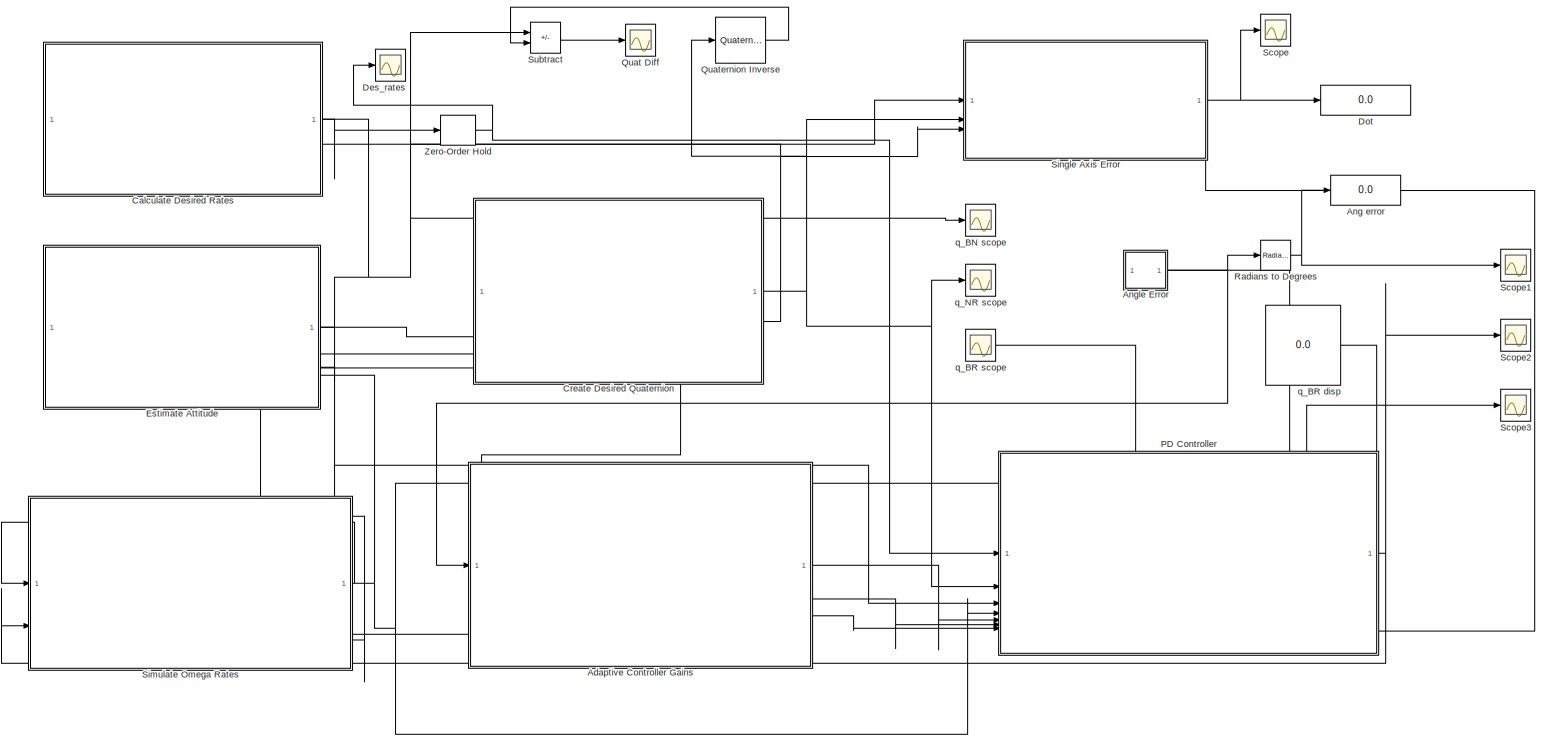
[diagram: root canvas - part 1/1, most of the canvas]
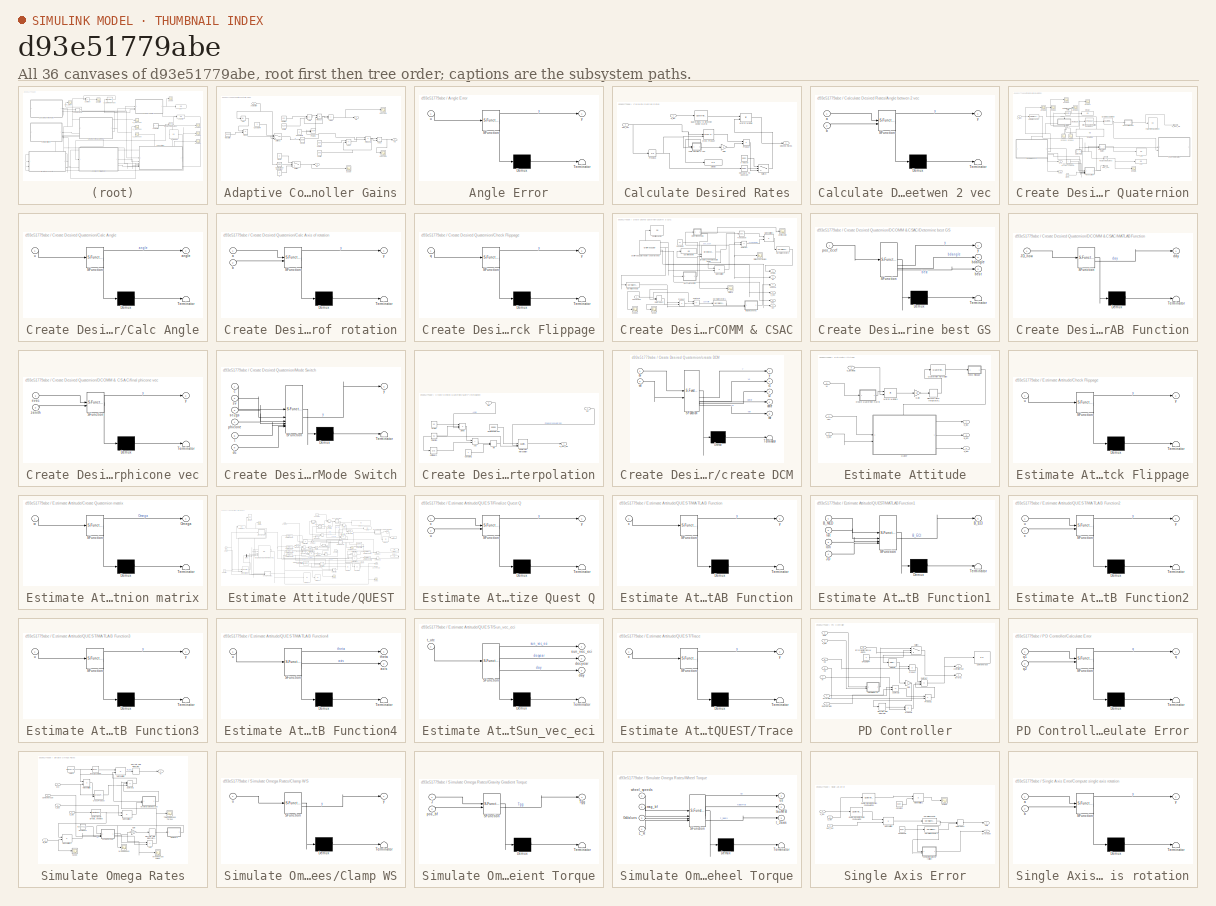
[diagram: thumbnail index - all 36 canvases of the model, root first then tree order]
MODEL slx_d93e51779abe
KIND model
CONFIG AbsTol = auto
CONFIG EnableMultiTasking = off
CONFIG FixedStep = auto
CONFIG MaxStep = auto
CONFIG MinStep = auto
CONFIG RelTol = 1e-3
CONFIG SampleTimeConstraint = Unconstrained
CONFIG SolverName = VariableStepAuto
CONFIG StartTime = 0
CONFIG StopTime = 50
BLOCK [SubSystem] Adaptive Controller Gains
BLOCK [Constant] Adaptive Controller Gains/0
  Value = 0
BLOCK [Abs] Adaptive Controller Gains/Abs
  SaturateOnIntegerOverflow = off
BLOCK [Sum] Adaptive Controller Gains/Add
  IconShape = rectangular
  Inputs = +-
BLOCK [Sum] Adaptive Controller Gains/Add1
  IconShape = rectangular
BLOCK [Sum] Adaptive Controller Gains/Add2
  IconShape = rectangular
  Inputs = +-
BLOCK [Sum] Adaptive Controller Gains/Add3
  IconShape = rectangular
BLOCK [Inport] Adaptive Controller Gains/Angle error
BLOCK [Reference] Adaptive Controller Gains/Compare To Constant  REF=simulink/Logic and Bit
Operations/Compare
To Constant
  SourceBlock = simulink/Logic and Bit\nOperations/Compare\nTo Constant
  SourceType = Compare To Constant
BLOCK [Constant] Adaptive Controller Gains/Constant4
BLOCK [Constant] Adaptive Controller Gains/Constant6
BLOCK [Product] Adaptive Controller Gains/Divide
  Inputs = */
BLOCK [Outport] Adaptive Controller Gains/Kd
  Port = 2
BLOCK [Constant] Adaptive Controller Gains/Kd Max
  Value = 0.50
BLOCK [Constant] Adaptive Controller Gains/Kd Min
  Value = 0.45
BLOCK [Scope] Adaptive Controller Gains/Kd scope
  ActiveDisplayYMaximum = 0.6
  ActiveDisplayYMinimum = 0.4
  DataLoggingVariableName = ScopeData3
  Floating = off
  GraphicalSettings = {"Style":{"BackgroundColor":[0.12941176470588237,0.12941176470588237,0.12941176470588237],"AxesColor":[0.07058823529411765,0.07058823529411765,0.07058823529411765],"LabelsColor":[0.8509803921568627,0.8509803921568627,0.8509803921568627],"PreserveColors":false,"Visible":[true],"LineStyle":["-"],"LineWidth":[1.5],"BarWidth":[0.9],"LineColor":["auto"],"LineFaceAlpha":[1],"LineEdgeAlpha":[1],"Marker":...<+1906ch>
  MultipleDisplayCache = [{"MaxYLimMag":0.6,"MaxYLimReal":0.6,"MinYLimMag":0.4,"MinYLimReal":0.4,"PlotAsMagnitudePhase":false,"ShowGrid":true,"ShowLegend":false,"Title":"%<SignalLabel>","YLabel":""}]
  NumInputPorts = 1
  ScopeFrameLocation = window
  Visible = on
  WasSavedAsWebScope = on
  WindowPosition = [360.000000,190.000000,560.000000,420.000000,]
BLOCK [Outport] Adaptive Controller Gains/Ki
  Port = 3
BLOCK [Constant] Adaptive Controller Gains/Ki gain
  Value = 0
BLOCK [Outport] Adaptive Controller Gains/Kp
BLOCK [Constant] Adaptive Controller Gains/Kp Max
  Value = 0.20
  VectorParams1D = off
BLOCK [Constant] Adaptive Controller Gains/Kp Min
  Value = 0.120
BLOCK [Scope] Adaptive Controller Gains/Kp scope
  ActiveDisplayYMaximum = 0.30000000000000004
  ActiveDisplayYMinimum = 0.1
  DataLoggingVariableName = ScopeData5
  Floating = off
  GraphicalSettings = {"Style":{"BackgroundColor":[0.12941176470588237,0.12941176470588237,0.12941176470588237],"AxesColor":[0.07058823529411765,0.07058823529411765,0.07058823529411765],"LabelsColor":[0.8509803921568627,0.8509803921568627,0.8509803921568627],"PreserveColors":false,"Visible":[true],"LineStyle":["-"],"LineWidth":[1.5],"BarWidth":[0.9],"LineColor":["auto"],"LineFaceAlpha":[1],"LineEdgeAlpha":[1],"Marker":...<+1976ch>
  MultipleDisplayCache = [{"MaxYLimMag":0.30000000000000004,"MaxYLimReal":0.30000000000000004,"MinYLimMag":0.1,"MinYLimReal":0.1,"PlotAsMagnitudePhase":false,"ShowGrid":true,"ShowLegend":false,"Title":"%<SignalLabel>","YLabel":""}]
  NumInputPorts = 1
  ScopeFrameLocation = window
  Visible = on
  WasSavedAsWebScope = on
  WindowPosition = [360.000000,190.000000,560.000000,420.000000,]
BLOCK [Constant] Adaptive Controller Gains/Max Error
  Value = 1e-100
BLOCK [Math] Adaptive Controller Gains/Power1
  Operator = pow
BLOCK [Product] Adaptive Controller Gains/Product
BLOCK [Product] Adaptive Controller Gains/Product1
BLOCK [Scope] Adaptive Controller Gains/Scope
  DataLoggingVariableName = ScopeData2
  Floating = off
  GraphicalSettings = {"GraphicalSettings":{"LegacySettings":true,"Style":{"Style":{"PlotType":"Auto"}}}}
  NumInputPorts = 1
  WasSavedAsWebScope = on
BLOCK [Math] Adaptive Controller Gains/Square
  Operator = square
BLOCK [Switch] Adaptive Controller Gains/Switch
  Criteria = u2 > Threshold
  InputSameDT = off
  SaturateOnIntegerOverflow = off
BLOCK [Switch] Adaptive Controller Gains/Switch2
  InputSameDT = off
  SaturateOnIntegerOverflow = off
  Threshold = 1
BLOCK [Display] Ang error
  Decimation = 1
BLOCK [SubSystem] Angle Error
  ErrorFcn = Stateflow.Translate.translate
  PermitHierarchicalResolution = ExplicitOnly
  SFBlockType = MATLAB Function
  TreatAsAtomicUnit = on
BLOCK [Demux] Angle Error/ Demux 
  Outputs = 1
BLOCK [S-Function] Angle Error/ SFunction 
  EnableBusSupport = off
  FunctionName = sf_sfun
  PortCounts = [1 2]
  SFcnIsStateOwnerBlock = off
  SFunctionDeploymentMode = off
  Tag = Stateflow S-Function 11
BLOCK [Terminator] Angle Error/ Terminator 
BLOCK [Inport] Angle Error/u
BLOCK [Outport] Angle Error/y
BLOCK [SubSystem] Calculate Desired Rates
  PortSchema = {"entries":[{"content":{"sides":[{"content":{},"type":"ConnectorPlacement.EquallySpacedRectSide","uuid":"787b8ffa-2bb6-4814-9cee-30d0a9949d62"},{"content":{"connectorIds":["Out1","In1","In2"],"side":"RIGHT"},"type":"ConnectorPlacement.EquallySpacedRectSide","uuid":"3e27d9b8-c1eb-4c63-90b1-636b0c297a4b"},{"content":{"side":"TOP"},"type":"ConnectorPlacement.EquallySpacedRectSide","uuid":"66d7efb2-8e...<+212ch>
BLOCK [Constant] Calculate Desired Rates/0 vector
  Value = [0;0;0]
BLOCK [SubSystem] Calculate Desired Rates/Angle betwen 2 vec
  ErrorFcn = Stateflow.Translate.translate
  PermitHierarchicalResolution = ExplicitOnly
  SFBlockType = MATLAB Function
  TreatAsAtomicUnit = on
BLOCK [Demux] Calculate Desired Rates/Angle betwen 2 vec/ Demux 
  Outputs = 1
BLOCK [S-Function] Calculate Desired Rates/Angle betwen 2 vec/ SFunction 
  EnableBusSupport = off
  FunctionName = sf_sfun
  PortCounts = [2 2]
  SFcnIsStateOwnerBlock = off
  SFunctionDeploymentMode = off
  Tag = Stateflow S-Function 8
BLOCK [Terminator] Calculate Desired Rates/Angle betwen 2 vec/ Terminator 
BLOCK [Inport] Calculate Desired Rates/Angle betwen 2 vec/a
BLOCK [Inport] Calculate Desired Rates/Angle betwen 2 vec/b
  Port = 2
BLOCK [Outport] Calculate Desired Rates/Angle betwen 2 vec/y
BLOCK [Reference] Calculate Desired Rates/Compare To Constant  REF=simulink/Logic and Bit
Operations/Compare
To Constant
  SourceBlock = simulink/Logic and Bit\nOperations/Compare\nTo Constant
  SourceType = Compare To Constant
BLOCK [Reference] Calculate Desired Rates/Cross Product  REF=matrix_library/Cross Product
  LibrarySourceBlock = simulink/Matrix\nOperations/Cross Product
  SourceBlock = matrix_library/Cross Product
  SourceType = CrossProduct
BLOCK [Outport] Calculate Desired Rates/Desired Rates
BLOCK [Display] Calculate Desired Rates/Display
  Decimation = 1
BLOCK [Gain] Calculate Desired Rates/Gain
BLOCK [Product] Calculate Desired Rates/Matrix Multiply
  Multiplication = Matrix(*)
BLOCK [UnitDelay] Calculate Desired Rates/Previous
  HasFrameUpgradeWarning = on
  InitialCondition = [0; 0; 0]
  SampleTime = -1
BLOCK [Product] Calculate Desired Rates/Product
BLOCK [Reference] Calculate Desired Rates/Quaternions to Direction Cosine Matrix  REF=sharedtransform/Quaternions to 
Direction Cosine Matrix
  LibrarySourceBlock = aerolibtransform2/Quaternions to \nDirection Cosine Matrix
  SourceBlock = sharedtransform/Quaternions to \nDirection Cosine Matrix
  SourceType = Quaternion2DCM
BLOCK [Switch] Calculate Desired Rates/Switch
  Criteria = u2 > Threshold
  InputSameDT = off
  SaturateOnIntegerOverflow = off
BLOCK [Inport] Calculate Desired Rates/des_vec
  Port = 2
BLOCK [Inport] Calculate Desired Rates/q_BN
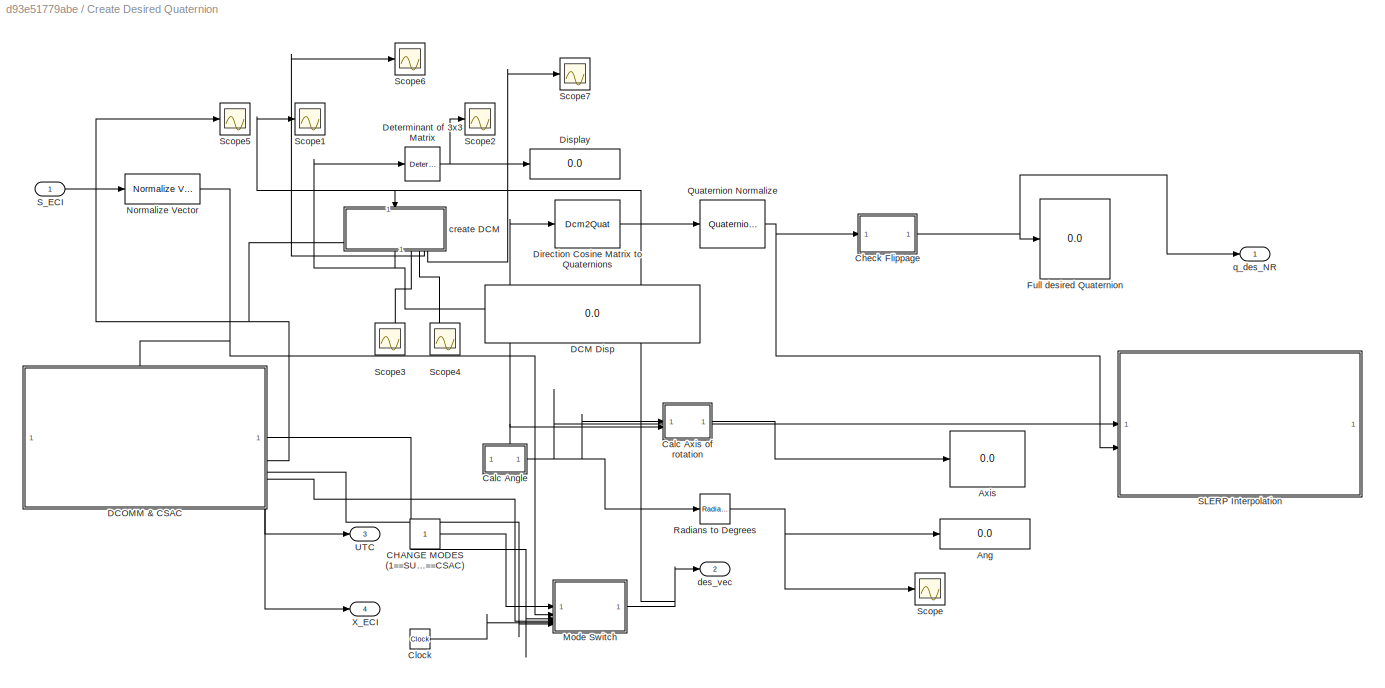
BLOCK [SubSystem] Create Desired Quaternion
  PortSchema = {"entries":[{"content":{"sides":[{"content":{"connectorIds":["Out3","In1","Out4"]},"type":"ConnectorPlacement.EquallySpacedRectSide","uuid":"a06b4b20-baa8-4cd2-8731-8e2324dbb8fc"},{"content":{"connectorIds":["Out1","Out2"],"side":"RIGHT"},"type":"ConnectorPlacement.EquallySpacedRectSide","uuid":"e89e67ff-4894-42c1-b3ac-017f3fc977aa"},{"content":{"side":"TOP"},"type":"ConnectorPlacement.EquallySpac...<+243ch>
BLOCK [Display] Create Desired Quaternion/Ang
  Decimation = 1
BLOCK [Display] Create Desired Quaternion/Axis
  Decimation = 1
BLOCK [Constant] Create Desired Quaternion/CHANGE MODES (1==SUN, 2==DCOMM, 3==CSAC)
BLOCK [SubSystem] Create Desired Quaternion/Calc Angle
  ErrorFcn = Stateflow.Translate.translate
  PermitHierarchicalResolution = ExplicitOnly
  SFBlockType = MATLAB Function
  TreatAsAtomicUnit = on
BLOCK [Demux] Create Desired Quaternion/Calc Angle/ Demux 
  Outputs = 1
BLOCK [S-Function] Create Desired Quaternion/Calc Angle/ SFunction 
  EnableBusSupport = off
  FunctionName = sf_sfun
  PortCounts = [1 2]
  SFcnIsStateOwnerBlock = off
  SFunctionDeploymentMode = off
  Tag = Stateflow S-Function 12
BLOCK [Terminator] Create Desired Quaternion/Calc Angle/ Terminator 
BLOCK [Outport] Create Desired Quaternion/Calc Angle/angle
BLOCK [Inport] Create Desired Quaternion/Calc Angle/u
BLOCK [SubSystem] Create Desired Quaternion/Calc Axis of rotation
  ErrorFcn = Stateflow.Translate.translate
  PermitHierarchicalResolution = ExplicitOnly
  SFBlockType = MATLAB Function
  TreatAsAtomicUnit = on
BLOCK [Demux] Create Desired Quaternion/Calc Axis of rotation/ Demux 
  Outputs = 1
BLOCK [S-Function] Create Desired Quaternion/Calc Axis of rotation/ SFunction 
  EnableBusSupport = off
  FunctionName = sf_sfun
  PortCounts = [2 2]
  SFcnIsStateOwnerBlock = off
  SFunctionDeploymentMode = off
  Tag = Stateflow S-Function 13
BLOCK [Terminator] Create Desired Quaternion/Calc Axis of rotation/ Terminator 
BLOCK [Inport] Create Desired Quaternion/Calc Axis of rotation/a
BLOCK [Inport] Create Desired Quaternion/Calc Axis of rotation/b
  Port = 2
BLOCK [Outport] Create Desired Quaternion/Calc Axis of rotation/y
BLOCK [SubSystem] Create Desired Quaternion/Check Flippage
  ErrorFcn = Stateflow.Translate.translate
  PermitHierarchicalResolution = ExplicitOnly
  SFBlockType = MATLAB Function
  TreatAsAtomicUnit = on
BLOCK [Demux] Create Desired Quaternion/Check Flippage/ Demux 
  Outputs = 1
BLOCK [S-Function] Create Desired Quaternion/Check Flippage/ SFunction 
  EnableBusSupport = off
  FunctionName = sf_sfun
  PortCounts = [1 2]
  SFcnIsStateOwnerBlock = off
  SFunctionDeploymentMode = off
  Tag = Stateflow S-Function 2
BLOCK [Terminator] Create Desired Quaternion/Check Flippage/ Terminator 
BLOCK [Inport] Create Desired Quaternion/Check Flippage/q
BLOCK [Outport] Create Desired Quaternion/Check Flippage/y
BLOCK [Clock] Create Desired Quaternion/Clock
BLOCK [Display] Create Desired Quaternion/DCM Disp
  Decimation = 1
BLOCK [SubSystem] Create Desired Quaternion/DCOMM & CSAC
  PortSchema = {"entries":[{"content":{"sides":[{"content":{},"type":"ConnectorPlacement.EquallySpacedRectSide","uuid":"787b8ffa-2bb6-4814-9cee-30d0a9949d62"},{"content":{"connectorIds":["Out1","Out2","Out3","Out4"],"side":"RIGHT"},"type":"ConnectorPlacement.EquallySpacedRectSide","uuid":"3e27d9b8-c1eb-4c63-90b1-636b0c297a4b"},{"content":{"connectorIds":["In1"],"side":"TOP"},"type":"ConnectorPlacement.EquallySpa...<+401ch>
BLOCK [Constant] Create Desired Quaternion/DCOMM & CSAC/Constant2
  Value = 37
BLOCK [Display] Create Desired Quaternion/DCOMM & CSAC/Day of the Month
  Decimation = 1
BLOCK [SubSystem] Create Desired Quaternion/DCOMM & CSAC/Determine best GS
  ErrorFcn = Stateflow.Translate.translate
  PermitHierarchicalResolution = ExplicitOnly
  SFBlockType = MATLAB Function
  TreatAsAtomicUnit = on
BLOCK [Demux] Create Desired Quaternion/DCOMM & CSAC/Determine best GS/ Demux 
  Outputs = 1
BLOCK [S-Function] Create Desired Quaternion/DCOMM & CSAC/Determine best GS/ SFunction 
  EnableBusSupport = off
  FunctionName = sf_sfun
  PortCounts = [1 4]
  SFcnIsStateOwnerBlock = off
  SFunctionDeploymentMode = off
  Tag = Stateflow S-Function 5
BLOCK [Terminator] Create Desired Quaternion/DCOMM & CSAC/Determine best GS/ Terminator 
BLOCK [Outport] Create Desired Quaternion/DCOMM & CSAC/Determine best GS/bdangle
  Port = 2
BLOCK [Outport] Create Desired Quaternion/DCOMM & CSAC/Determine best GS/best
  Port = 3
BLOCK [Inport] Create Desired Quaternion/DCOMM & CSAC/Determine best GS/pos_ecef
BLOCK [Outport] Create Desired Quaternion/DCOMM & CSAC/Determine best GS/y
BLOCK [Reference] Create Desired Quaternion/DCOMM & CSAC/Direction Cosine Matrix ECI to ECEF  REF=aerolibtransform2/Direction Cosine Matrix
ECI to ECEF
  AttributesFormatString = %<red>
  SourceBlock = aerolibtransform2/Direction Cosine Matrix\nECI to ECEF
  SourceType = DCMECItoECEF
BLOCK [DotProduct] Create Desired Quaternion/DCOMM & CSAC/Dot Product
  OutDataTypeStr = Inherit: Inherit via internal rule
BLOCK [SubSystem] Create Desired Quaternion/DCOMM & CSAC/MATLAB Function
  ErrorFcn = Stateflow.Translate.translate
  PermitHierarchicalResolution = ExplicitOnly
  SFBlockType = MATLAB Function
  TreatAsAtomicUnit = on
BLOCK [Demux] Create Desired Quaternion/DCOMM & CSAC/MATLAB Function/ Demux 
  Outputs = 1
BLOCK [S-Function] Create Desired Quaternion/DCOMM & CSAC/MATLAB Function/ SFunction 
  EnableBusSupport = off
  FunctionName = sf_sfun
  PortCounts = [1 2]
  SFcnIsStateOwnerBlock = off
  SFunctionDeploymentMode = off
  Tag = Stateflow S-Function 23
BLOCK [Terminator] Create Desired Quaternion/DCOMM & CSAC/MATLAB Function/ Terminator 
BLOCK [Inport] Create Desired Quaternion/DCOMM & CSAC/MATLAB Function/JD_now
BLOCK [Outport] Create Desired Quaternion/DCOMM & CSAC/MATLAB Function/day
BLOCK [Product] Create Desired Quaternion/DCOMM & CSAC/Matrix Multiply
  Multiplication = Matrix(*)
BLOCK [Product] Create Desired Quaternion/DCOMM & CSAC/Matrix Multiply1
  Multiplication = Matrix(*)
BLOCK [Reference] Create Desired Quaternion/DCOMM & CSAC/Normalize Vector  REF=vrlib/Utilities/Normalize Vector
  SourceBlock = vrlib/Utilities/Normalize Vector
  SourceType = Normalize Vector
BLOCK [Reference] Create Desired Quaternion/DCOMM & CSAC/Normalize Vector1  REF=vrlib/Utilities/Normalize Vector
  SourceBlock = vrlib/Utilities/Normalize Vector
  SourceType = Normalize Vector
BLOCK [Reference] Create Desired Quaternion/DCOMM & CSAC/Normalize Vector2  REF=vrlib/Utilities/Normalize Vector
  SourceBlock = vrlib/Utilities/Normalize Vector
  SourceType = Normalize Vector
BLOCK [OrbitPropagator] Create Desired Quaternion/DCOMM & CSAC/Orbit Propagator Kepler (unperturbed)
  accelIn = on
  customJ2 = 1.0826269e-03
  customMu = 4.305e13
  customOmega = 4.06125949e-3
  customR = 3396200
  fixedPosition = [-4142689.0 -2676864.7 -4669861.6]
  fixedVelocity = [1452.7 -6720.7 2568.1]
  inclination = 55
  inertialPosition = [3649700.0 3308200.0 -4676600.0]
  inertialVelocity = [-2750.8 6666.4 2573.4]
  semiMajorAxis = 6821000
  startDate = juliandate(2025, 10, 7, 18, 0, 0)
BLOCK [Display] Create Desired Quaternion/DCOMM & CSAC/Position Vector
  Decimation = 1
BLOCK [Product] Create Desired Quaternion/DCOMM & CSAC/Product
BLOCK [Scope] Create Desired Quaternion/DCOMM & CSAC/Scope
  ActiveDisplayYMaximum = -0.077868403904038916
  ActiveDisplayYMinimum = -0.75552561150534214
  DataLoggingVariableName = ScopeData9
  Floating = off
  GraphicalSettings = {"Style":{"BackgroundColor":[0.12941176470588237,0.12941176470588237,0.12941176470588237],"AxesColor":[0.07058823529411765,0.07058823529411765,0.07058823529411765],"LabelsColor":[0.8509803921568627,0.8509803921568627,0.8509803921568627],"PreserveColors":false,"Visible":[true],"LineStyle":["-"],"LineWidth":[1.5],"BarWidth":[0.9],"LineColor":["auto"],"LineFaceAlpha":[1],"LineEdgeAlpha":[1],"Marker":...<+2013ch>
  MultipleDisplayCache = [{"MaxYLimMag":0.49927168567767993,"MaxYLimReal":-0.077868403904038916,"MinYLimMag":0,"MinYLimReal":-0.75552561150534214,"PlotAsMagnitudePhase":false,"ShowGrid":true,"ShowLegend":false,"Title":"%<SignalLabel>","YLabel":""}]
  NumInputPorts = 1
  ScopeFrameLocation = window
  WasSavedAsWebScope = on
  WindowPosition = [360.000000,190.000000,560.000000,420.000000,]
BLOCK [Scope] Create Desired Quaternion/DCOMM & CSAC/Scope1
  ActiveDisplayYMaximum = 1.2542034832328808
  ActiveDisplayYMinimum = -1.8566059335886429
  DataLoggingVariableName = ScopeData10
  Floating = off
  GraphicalSettings = {"Style":{"BackgroundColor":[0.12941176470588237,0.12941176470588237,0.12941176470588237],"AxesColor":[0.07058823529411765,0.07058823529411765,0.07058823529411765],"LabelsColor":[0.8509803921568627,0.8509803921568627,0.8509803921568627],"PreserveColors":false,"Visible":[true,true,true],"LineStyle":["-","-","-"],"LineWidth":[1.5,1.5,1.5],"BarWidth":[0.9,0.9,0.9],"LineColor":["auto","auto","auto"],"...<+2260ch>
  MultipleDisplayCache = [{"MaxYLimMag":0.96958968985167482,"MaxYLimReal":1.2542034832328808,"MinYLimMag":0,"MinYLimReal":-1.8566059335886429,"PlotAsMagnitudePhase":false,"ShowGrid":true,"ShowLegend":true,"Title":"%<SignalLabel>","YLabel":""}]
  NumInputPorts = 1
  ScopeFrameLocation = window
  ShowLegend = on
  WasSavedAsWebScope = on
  WindowPosition = [360.000000,190.000000,560.000000,420.000000,]
BLOCK [Scope] Create Desired Quaternion/DCOMM & CSAC/Station #
  ActiveDisplayYMaximum = 8.6314899749278684
  ActiveDisplayYMinimum = -3.9020645279013473
  DataLoggingVariableName = ScopeData17
  Floating = off
  GraphicalSettings = {"Style":{"BackgroundColor":[0.12941176470588237,0.12941176470588237,0.12941176470588237],"AxesColor":[0.07058823529411765,0.07058823529411765,0.07058823529411765],"LabelsColor":[0.8509803921568627,0.8509803921568627,0.8509803921568627],"PreserveColors":false,"Visible":[true],"LineStyle":["-"],"LineWidth":[1.5],"BarWidth":[0.9],"LineColor":["auto"],"LineFaceAlpha":[1],"LineEdgeAlpha":[1],"Marker":...<+1999ch>
  MultipleDisplayCache = [{"MaxYLimMag":2.25,"MaxYLimReal":8.6314899749278684,"MinYLimMag":0,"MinYLimReal":-3.9020645279013473,"PlotAsMagnitudePhase":false,"ShowGrid":true,"ShowLegend":false,"Title":"%<SignalLabel>","YLabel":""}]
  NumInputPorts = 1
  ScopeFrameLocation = window
  Visible = on
  WasSavedAsWebScope = on
  WindowPosition = [234.000000,87.000000,560.000000,420.000000,]
BLOCK [Scope] Create Desired Quaternion/DCOMM & CSAC/Station coordinates
  ActiveDisplayYMaximum = 2.4351882117129691E+7
  ActiveDisplayYMinimum = -3.5092084454163194E+7
  DataLoggingVariableName = ScopeData16
  Floating = off
  GraphicalSettings = {"Style":{"BackgroundColor":[0.12941176470588237,0.12941176470588237,0.12941176470588237],"AxesColor":[0.07058823529411765,0.07058823529411765,0.07058823529411765],"LabelsColor":[0.8509803921568627,0.8509803921568627,0.8509803921568627],"PreserveColors":false,"Visible":[true,true,true],"LineStyle":["-","-","-"],"LineWidth":[1.5,1.5,1.5],"BarWidth":[0.9,0.9,0.9],"LineColor":["auto","auto","auto"],"...<+2276ch>
  MultipleDisplayCache = [{"MaxYLimMag":10,"MaxYLimReal":2.4351882117129691E+7,"MinYLimMag":0,"MinYLimReal":-3.5092084454163194E+7,"PlotAsMagnitudePhase":false,"ShowGrid":true,"ShowLegend":false,"Title":"%<SignalLabel>","YLabel":""}]
  NumInputPorts = 1
  ScopeFrameLocation = window
  Visible = on
  WasSavedAsWebScope = on
  WindowPosition = [694.000000,105.000000,560.000000,545.000000,]
BLOCK [Sum] Create Desired Quaternion/DCOMM & CSAC/Subtract
  IconShape = rectangular
  Inputs = +-
BLOCK [Sum] Create Desired Quaternion/DCOMM & CSAC/Subtract1
  IconShape = rectangular
  Inputs = +-
BLOCK [Inport] Create Desired Quaternion/DCOMM & CSAC/Sun vec ECI
BLOCK [Math] Create Desired Quaternion/DCOMM & CSAC/Transpose
  Operator = transpose
BLOCK [Outport] Create Desired Quaternion/DCOMM & CSAC/UTC
  Port = 6
BLOCK [Outport] Create Desired Quaternion/DCOMM & CSAC/Vel
  Port = 2
BLOCK [Outport] Create Desired Quaternion/DCOMM & CSAC/X_ECI
  Port = 5
BLOCK [Scope] Create Desired Quaternion/DCOMM & CSAC/Zenith Angle
  ActiveDisplayYMaximum = 156.36741593298581
  ActiveDisplayYMinimum = 23.942233857370717
  DataLoggingVariableName = ScopeData15
  Floating = off
  GraphicalSettings = {"Style":{"BackgroundColor":[0.12941176470588237,0.12941176470588237,0.12941176470588237],"AxesColor":[0.07058823529411765,0.07058823529411765,0.07058823529411765],"LabelsColor":[0.8509803921568627,0.8509803921568627,0.8509803921568627],"PreserveColors":false,"Visible":[true],"LineStyle":["-"],"LineWidth":[1.5],"BarWidth":[0.9],"LineColor":["auto"],"LineFaceAlpha":[1],"LineEdgeAlpha":[1],"Marker":...<+2065ch>
  MultipleDisplayCache = [{"MaxYLimMag":148.11711672443425,"MaxYLimReal":156.36741593298581,"MinYLimMag":111.41554621477324,"MinYLimReal":23.942233857370717,"PlotAsMagnitudePhase":false,"ShowGrid":true,"ShowLegend":false,"Title":"%<SignalLabel>","YLabel":""}]
  NumInputPorts = 1
  ScopeFrameLocation = window
  Visible = on
  WasSavedAsWebScope = on
  WindowPosition = [662.000000,80.000000,560.000000,420.000000,]
BLOCK [Outport] Create Desired Quaternion/DCOMM & CSAC/dc
  Port = 3
BLOCK [SubSystem] Create Desired Quaternion/DCOMM & CSAC/final phicone vec
  ErrorFcn = Stateflow.Translate.translate
  PermitHierarchicalResolution = ExplicitOnly
  SFBlockType = MATLAB Function
  TreatAsAtomicUnit = on
BLOCK [Demux] Create Desired Quaternion/DCOMM & CSAC/final phicone vec/ Demux 
  Outputs = 1
BLOCK [S-Function] Create Desired Quaternion/DCOMM & CSAC/final phicone vec/ SFunction 
  EnableBusSupport = off
  FunctionName = sf_sfun
  PortCounts = [2 2]
  SFcnIsStateOwnerBlock = off
  SFunctionDeploymentMode = off
  Tag = Stateflow S-Function 9
BLOCK [Terminator] Create Desired Quaternion/DCOMM & CSAC/final phicone vec/ Terminator 
BLOCK [Inport] Create Desired Quaternion/DCOMM & CSAC/final phicone vec/svec
BLOCK [Outport] Create Desired Quaternion/DCOMM & CSAC/final phicone vec/y
BLOCK [Inport] Create Desired Quaternion/DCOMM & CSAC/final phicone vec/zenith
  Port = 2
BLOCK [Outport] Create Desired Quaternion/DCOMM & CSAC/phicone
  Port = 4
BLOCK [Outport] Create Desired Quaternion/DCOMM & CSAC/sc2gs
BLOCK [Reference] Create Desired Quaternion/Determinant of 3x3 Matrix  REF=sharedutil/Determinant of
3x3 Matrix
  LibrarySourceBlock = aerolibutil/Determinant of\n3x3 Matrix
  SourceBlock = sharedutil/Determinant of\n3x3 Matrix
  SourceType = Determinant of 3x3 Matrix
BLOCK [Dcm2Quat] Create Desired Quaternion/Direction Cosine Matrix to Quaternions
BLOCK [Display] Create Desired Quaternion/Display
  Decimation = 1
BLOCK [Display] Create Desired Quaternion/Full desired Quaternion
  Decimation = 1
BLOCK [SubSystem] Create Desired Quaternion/Mode Switch
  ErrorFcn = Stateflow.Translate.translate
  PermitHierarchicalResolution = ExplicitOnly
  SFBlockType = MATLAB Function
  TreatAsAtomicUnit = on
BLOCK [Demux] Create Desired Quaternion/Mode Switch/ Demux 
  Outputs = 1
BLOCK [S-Function] Create Desired Quaternion/Mode Switch/ SFunction 
  EnableBusSupport = off
  FunctionName = sf_sfun
  PortCounts = [6 2]
  SFcnIsStateOwnerBlock = off
  SFunctionDeploymentMode = off
  Tag = Stateflow S-Function 7
BLOCK [Terminator] Create Desired Quaternion/Mode Switch/ Terminator 
BLOCK [Inport] Create Desired Quaternion/Mode Switch/c
BLOCK [Inport] Create Desired Quaternion/Mode Switch/dc
  Port = 6
BLOCK [Inport] Create Desired Quaternion/Mode Switch/phicone
  Port = 4
BLOCK [Inport] Create Desired Quaternion/Mode Switch/sc2gs
  Port = 3
BLOCK [Inport] Create Desired Quaternion/Mode Switch/sv
  Port = 2
BLOCK [Inport] Create Desired Quaternion/Mode Switch/t
  Port = 5
BLOCK [Outport] Create Desired Quaternion/Mode Switch/y
BLOCK [Reference] Create Desired Quaternion/Normalize Vector  REF=vrlib/Utilities/Normalize Vector
  SourceBlock = vrlib/Utilities/Normalize Vector
  SourceType = Normalize Vector
BLOCK [Reference] Create Desired Quaternion/Quaternion Normalize  REF=sharedutil/Quaternion
Normalize
  LibrarySourceBlock = aerolibutil/Quaternion\nNormalize
  SourceBlock = sharedutil/Quaternion\nNormalize
  SourceType = Quaternion Normalize
BLOCK [Reference] Create Desired Quaternion/Radians to Degrees  REF=simulink_extras/Transformations/Radians
to Degrees
  SourceBlock = simulink_extras/Transformations/Radians\nto Degrees
  SourceType = RadiansToDegrees
BLOCK [SubSystem] Create Desired Quaternion/SLERP Interpolation
  Commented = on
BLOCK [Sum] Create Desired Quaternion/SLERP Interpolation/Add
  IconShape = rectangular
BLOCK [Constant] Create Desired Quaternion/SLERP Interpolation/Constant1
BLOCK [Product] Create Desired Quaternion/SLERP Interpolation/Divide
  Inputs = **/
BLOCK [Constant] Create Desired Quaternion/SLERP Interpolation/Identity Quaternion
  Value = [1;0;0;0]
BLOCK [Inport] Create Desired Quaternion/SLERP Interpolation/In1
BLOCK [Inport] Create Desired Quaternion/SLERP Interpolation/In2
  Port = 2
BLOCK [MinMax] Create Desired Quaternion/SLERP Interpolation/Min
  Inputs = 2
BLOCK [QuatInterp] Create Desired Quaternion/SLERP Interpolation/Quaternion Interpolation
BLOCK [Constant] Create Desired Quaternion/SLERP Interpolation/Time Step
  Value = 0.1
BLOCK [UnitDelay] Create Desired Quaternion/SLERP Interpolation/Unit Delay1
  HasFrameUpgradeWarning = on
  SampleTime = -1
BLOCK [Constant] Create Desired Quaternion/SLERP Interpolation/Wmax
  Value = 0.2
BLOCK [Outport] Create Desired Quaternion/SLERP Interpolation/q_des_NR
BLOCK [Inport] Create Desired Quaternion/S_ECI
BLOCK [Scope] Create Desired Quaternion/Scope
  ActiveDisplayYMaximum = 243.09394752220919
  ActiveDisplayYMinimum = 54.843753253763992
  DataLoggingVariableName = ScopeData19
  Floating = off
  GraphicalSettings = {"Style":{"BackgroundColor":[0.12941176470588237,0.12941176470588237,0.12941176470588237],"AxesColor":[0.07058823529411765,0.07058823529411765,0.07058823529411765],"LabelsColor":[0.8509803921568627,0.8509803921568627,0.8509803921568627],"PreserveColors":false,"Visible":[true],"LineStyle":["-"],"LineWidth":[1.5],"BarWidth":[0.9],"LineColor":["auto"],"LineFaceAlpha":[1],"LineEdgeAlpha":[1],"Marker":...<+2049ch>
  MultipleDisplayCache = [{"MaxYLimMag":185.69144105889472,"MaxYLimReal":243.09394752220919,"MinYLimMag":128.72824505337204,"MinYLimReal":54.843753253763992,"PlotAsMagnitudePhase":false,"ShowGrid":true,"ShowLegend":false,"Title":"%<SignalLabel>","YLabel":""}]
  NumInputPorts = 1
  ScopeFrameLocation = window
  Visible = on
  WasSavedAsWebScope = on
  WindowPosition = [360.000000,190.000000,560.000000,420.000000,]
BLOCK [Scope] Create Desired Quaternion/Scope1
  ActiveDisplayYMaximum = 0.88408956918614268
  ActiveDisplayYMinimum = -2.4642997600105518
  DataLoggingVariableName = ScopeData8
  Floating = off
  GraphicalSettings = {"Style":{"BackgroundColor":[0.12941176470588237,0.12941176470588237,0.12941176470588237],"AxesColor":[0.07058823529411765,0.07058823529411765,0.07058823529411765],"LabelsColor":[0.8509803921568627,0.8509803921568627,0.8509803921568627],"PreserveColors":false,"Visible":[true,true,true],"LineStyle":["-","-","-"],"LineWidth":[1.5,1.5,1.5],"BarWidth":[0.9,0.9,0.9],"LineColor":["auto","auto","auto"],"...<+2262ch>
  MultipleDisplayCache = [{"MaxYLimMag":1.1571527040856757,"MaxYLimReal":0.88408956918614268,"MinYLimMag":0,"MinYLimReal":-2.4642997600105518,"PlotAsMagnitudePhase":false,"ShowGrid":true,"ShowLegend":false,"Title":"%<SignalLabel>","YLabel":""}]
  NumInputPorts = 1
  ScopeFrameLocation = window
  Visible = on
  WasSavedAsWebScope = on
  WindowPosition = [360.000000,190.000000,560.000000,420.000000,]
BLOCK [Scope] Create Desired Quaternion/Scope2
  ActiveDisplayYMaximum = 1.0000000000475318
  ActiveDisplayYMinimum = 0.99999999995780953
  ContainerLayout = {"WindowBounds":[359,116,674,687],"gridDimensions":{"w":1,"h":1},"tileCount":1,"tileCoverage":1,"columnWeights":1,"rowWeights":1,"tileOccupancy":{"children":[{"id":"/q_BN scope"},{"id":"/Create Desired Quaternion/Scope2"},{"id":"/Quat Diff"},{"id":"/Estimate Attitude/QUEST/Quaternion scope"},{"id":"/Estimate Attitude/QUEST/Scope"}]}}  <repeated x5 — deduplicated; at blocks: Scope2, Quaternion scope, Scope, Quat Diff, q_BN scope>
  DataLoggingVariableName = ScopeData3
  Floating = off
  GraphicalSettings = {"Style":{"BackgroundColor":[0.12941176470588237,0.12941176470588237,0.12941176470588237],"AxesColor":[0.07058823529411765,0.07058823529411765,0.07058823529411765],"LabelsColor":[0.8509803921568627,0.8509803921568627,0.8509803921568627],"PreserveColors":false,"Visible":[true],"LineStyle":["-"],"LineWidth":[1.5],"BarWidth":[0.9],"LineColor":["auto"],"LineFaceAlpha":[1],"LineEdgeAlpha":[1],"Marker":...<+2069ch>
  MultipleDisplayCache = [{"MaxYLimMag":1.0000000000000007,"MaxYLimReal":1.0000000000475318,"MinYLimMag":0.99999999999999956,"MinYLimReal":0.99999999995780953,"PlotAsMagnitudePhase":false,"ShowGrid":true,"ShowLegend":false,"Title":"%<SignalLabel>","YLabel":""}]
  NumInputPorts = 1
  ScopeFrameLocation = container
  Visible = on
  WasSavedAsWebScope = on
  WindowPosition = [359.000000,-3.000000,674.000000,687.000000,]
BLOCK [Scope] Create Desired Quaternion/Scope3
  ActiveDisplayYMaximum = 1.5557132316836486
  ActiveDisplayYMinimum = -3.0436341558557145
  DataLoggingVariableName = ScopeData21
  Floating = off
  GraphicalSettings = {"Style":{"BackgroundColor":[0.12941176470588237,0.12941176470588237,0.12941176470588237],"AxesColor":[0.07058823529411765,0.07058823529411765,0.07058823529411765],"LabelsColor":[0.8509803921568627,0.8509803921568627,0.8509803921568627],"PreserveColors":false,"Visible":[true,true,true],"LineStyle":["-","-","-"],"LineWidth":[1.5,1.5,1.5],"BarWidth":[0.9,0.9,0.9],"LineColor":["auto","auto","auto"],"...<+2272ch>
  MultipleDisplayCache = [{"MaxYLimMag":1.098781832569161,"MaxYLimReal":1.5557132316836486,"MinYLimMag":0,"MinYLimReal":-3.0436341558557145,"PlotAsMagnitudePhase":false,"ShowGrid":true,"ShowLegend":true,"Title":"%<SignalLabel>","YLabel":""}]
  NumInputPorts = 1
  ScopeFrameLocation = window
  ShowLegend = on
  Visible = on
  WasSavedAsWebScope = on
  WindowPosition = [360.000000,190.000000,560.000000,420.000000,]
BLOCK [Scope] Create Desired Quaternion/Scope4
  ActiveDisplayYMaximum = 1.0300816259123484
  ActiveDisplayYMinimum = -0.39677371902603914
  DataLoggingVariableName = ScopeData22
  Floating = off
  GraphicalSettings = {"Style":{"BackgroundColor":[0.12941176470588237,0.12941176470588237,0.12941176470588237],"AxesColor":[0.07058823529411765,0.07058823529411765,0.07058823529411765],"LabelsColor":[0.8509803921568627,0.8509803921568627,0.8509803921568627],"PreserveColors":false,"Visible":[true,true,true],"LineStyle":["-","-","-"],"LineWidth":[1.5,1.5,1.5],"BarWidth":[0.9,0.9,0.9],"LineColor":["auto","auto","auto"],"...<+2277ch>
  MultipleDisplayCache = [{"MaxYLimMag":1.0300816259123484,"MaxYLimReal":1.0300816259123484,"MinYLimMag":0,"MinYLimReal":-0.39677371902603914,"PlotAsMagnitudePhase":false,"ShowGrid":true,"ShowLegend":false,"Title":"%<SignalLabel>","YLabel":""}]
  NumInputPorts = 1
  ScopeFrameLocation = window
  Visible = on
  WasSavedAsWebScope = on
  WindowPosition = [360.000000,190.000000,560.000000,420.000000,]
BLOCK [Scope] Create Desired Quaternion/Scope5
  ActiveDisplayYMaximum = 7764.3844723641732
  ActiveDisplayYMinimum = -3863.6885466348626
  DataLoggingVariableName = ScopeData23
  Floating = off
  GraphicalSettings = {"Style":{"BackgroundColor":[0.12941176470588237,0.12941176470588237,0.12941176470588237],"AxesColor":[0.07058823529411765,0.07058823529411765,0.07058823529411765],"LabelsColor":[0.8509803921568627,0.8509803921568627,0.8509803921568627],"PreserveColors":false,"Visible":[true,true,true],"LineStyle":["-","-","-"],"LineWidth":[1.5,1.5,1.5],"BarWidth":[0.9,0.9,0.9],"LineColor":["auto","auto","auto"],"...<+2277ch>
  MultipleDisplayCache = [{"MaxYLimMag":7764.3844723641732,"MaxYLimReal":7764.3844723641732,"MinYLimMag":0,"MinYLimReal":-3863.6885466348626,"PlotAsMagnitudePhase":false,"ShowGrid":true,"ShowLegend":false,"Title":"%<SignalLabel>","YLabel":""}]
  NumInputPorts = 1
  ScopeFrameLocation = window
  Visible = on
  WasSavedAsWebScope = on
  WindowPosition = [360.000000,190.000000,560.000000,420.000000,]
BLOCK [Scope] Create Desired Quaternion/Scope6
  ActiveDisplayYMaximum = 1.0836231729395602
  ActiveDisplayYMinimum = -0.597873861939996
  DataLoggingVariableName = ScopeData24
  Floating = off
  GraphicalSettings = {"Style":{"BackgroundColor":[0.12941176470588237,0.12941176470588237,0.12941176470588237],"AxesColor":[0.07058823529411765,0.07058823529411765,0.07058823529411765],"LabelsColor":[0.8509803921568627,0.8509803921568627,0.8509803921568627],"PreserveColors":false,"Visible":[true],"LineStyle":["-"],"LineWidth":[1.5],"BarWidth":[0.9],"LineColor":["auto"],"LineFaceAlpha":[1],"LineEdgeAlpha":[1],"Marker":...<+2015ch>
  MultipleDisplayCache = [{"MaxYLimMag":0.96396061100451258,"MaxYLimReal":1.0836231729395602,"MinYLimMag":0,"MinYLimReal":-0.597873861939996,"PlotAsMagnitudePhase":false,"ShowGrid":true,"ShowLegend":false,"Title":"%<SignalLabel>","YLabel":""}]
  NumInputPorts = 1
  ScopeFrameLocation = window
  Visible = on
  WasSavedAsWebScope = on
  WindowPosition = [360.000000,190.000000,560.000000,420.000000,]
BLOCK [Scope] Create Desired Quaternion/Scope7
  ActiveDisplayYMaximum = 1
  ActiveDisplayYMinimum = -1
  DataLoggingVariableName = ScopeData25
  Floating = off
  GraphicalSettings = {"Style":{"BackgroundColor":[0.12941176470588237,0.12941176470588237,0.12941176470588237],"AxesColor":[0.07058823529411765,0.07058823529411765,0.07058823529411765],"LabelsColor":[0.8509803921568627,0.8509803921568627,0.8509803921568627],"PreserveColors":false,"Visible":[true],"LineStyle":["-"],"LineWidth":[1.5],"BarWidth":[0.9],"LineColor":["auto"],"LineFaceAlpha":[1],"LineEdgeAlpha":[1],"Marker":...<+1910ch>
  MultipleDisplayCache = [{"MaxYLimMag":1,"MaxYLimReal":1,"MinYLimMag":0,"MinYLimReal":-1,"PlotAsMagnitudePhase":false,"ShowGrid":true,"ShowLegend":false,"Title":"%<SignalLabel>","YLabel":""}]
  NumInputPorts = 1
  ScopeFrameLocation = window
  Visible = on
  WasSavedAsWebScope = on
  WindowPosition = [360.000000,190.000000,560.000000,420.000000,]
BLOCK [Outport] Create Desired Quaternion/UTC
  Port = 3
BLOCK [Outport] Create Desired Quaternion/X_ECI
  Port = 4
BLOCK [SubSystem] Create Desired Quaternion/create DCM
  ErrorFcn = Stateflow.Translate.translate
  NameLocation = left
  PermitHierarchicalResolution = ExplicitOnly
  SFBlockType = MATLAB Function
  TreatAsAtomicUnit = on
BLOCK [Demux] Create Desired Quaternion/create DCM/ Demux 
  Outputs = 1
BLOCK [S-Function] Create Desired Quaternion/create DCM/ SFunction 
  EnableBusSupport = off
  FunctionName = sf_sfun
  PortCounts = [2 6]
  SFcnIsStateOwnerBlock = off
  SFunctionDeploymentMode = off
  Tag = Stateflow S-Function 4
BLOCK [Terminator] Create Desired Quaternion/create DCM/ Terminator 
BLOCK [Outport] Create Desired Quaternion/create DCM/doter
  Port = 4
BLOCK [Inport] Create Desired Quaternion/create DCM/dv
BLOCK [Outport] Create Desired Quaternion/create DCM/v1
  Port = 2
BLOCK [Outport] Create Desired Quaternion/create DCM/v2
  Port = 3
BLOCK [Outport] Create Desired Quaternion/create DCM/var
  Port = 5
BLOCK [Inport] Create Desired Quaternion/create DCM/vel
  Port = 2
BLOCK [Outport] Create Desired Quaternion/create DCM/y
BLOCK [Outport] Create Desired Quaternion/des_vec
  Port = 2
BLOCK [Outport] Create Desired Quaternion/q_des_NR
BLOCK [Scope] Des_rates
  ActiveDisplayYMaximum = 1.8036722603787631E-16
  ActiveDisplayYMinimum = -7.5812097384350083E-16
  DataLoggingVariableName = ScopeData11
  Floating = off
  GraphicalSettings = {"Style":{"BackgroundColor":[0.12941176470588237,0.12941176470588237,0.12941176470588237],"AxesColor":[0.07058823529411765,0.07058823529411765,0.07058823529411765],"LabelsColor":[0.8509803921568627,0.8509803921568627,0.8509803921568627],"PreserveColors":false,"Visible":[true,true,true],"LineStyle":["-","-","-"],"LineWidth":[1.5,1.5,1.5],"BarWidth":[0.9,0.9,0.9],"LineColor":["auto","auto","auto"],"...<+2307ch>
  MultipleDisplayCache = [{"MaxYLimMag":7.5812097384350083E-16,"MaxYLimReal":1.8036722603787631E-16,"MinYLimMag":0,"MinYLimReal":-7.5812097384350083E-16,"PlotAsMagnitudePhase":false,"ShowGrid":true,"ShowLegend":false,"Title":"%<SignalLabel>","YLabel":""}]
  NumInputPorts = 1
  ScopeFrameLocation = window
  Visible = on
  WasSavedAsWebScope = on
  WindowPosition = [360.000000,190.000000,560.000000,420.000000,]
BLOCK [Display] Dot
  Decimation = 1
BLOCK [SubSystem] Estimate Attitude
  PortSchema = {"entries":[{"content":{"sides":[{"content":{"connectorIds":["Out3"]},"type":"ConnectorPlacement.EquallySpacedRectSide","uuid":"9e22cb63-f739-4def-bc16-8f5ac96da1b2"},{"content":{"connectorIds":["Out1","In3","In4"],"side":"RIGHT"},"type":"ConnectorPlacement.EquallySpacedRectSide","uuid":"185e8ae2-f047-4dfe-b4b8-b24ace8a5036"},{"content":{"connectorIds":["In1","In2"],"side":"TOP"},"type":"Connector...<+414ch>
BLOCK [Outport] Estimate Attitude/B_ECI
  Port = 3
BLOCK [SubSystem] Estimate Attitude/Check Flippage
  ErrorFcn = Stateflow.Translate.translate
  PermitHierarchicalResolution = ExplicitOnly
  SFBlockType = MATLAB Function
  TreatAsAtomicUnit = on
BLOCK [Demux] Estimate Attitude/Check Flippage/ Demux 
  Outputs = 1
BLOCK [S-Function] Estimate Attitude/Check Flippage/ SFunction 
  EnableBusSupport = off
  FunctionName = sf_sfun
  PortCounts = [1 2]
  SFcnIsStateOwnerBlock = off
  SFunctionDeploymentMode = off
  Tag = Stateflow S-Function 3
BLOCK [Terminator] Estimate Attitude/Check Flippage/ Terminator 
BLOCK [Inport] Estimate Attitude/Check Flippage/u
BLOCK [Outport] Estimate Attitude/Check Flippage/y
BLOCK [SubSystem] Estimate Attitude/Create Quaternion matrix
  ErrorFcn = Stateflow.Translate.translate
  PermitHierarchicalResolution = ExplicitOnly
  SFBlockType = MATLAB Function
  TreatAsAtomicUnit = on
BLOCK [Demux] Estimate Attitude/Create Quaternion matrix/ Demux 
  Outputs = 1
BLOCK [S-Function] Estimate Attitude/Create Quaternion matrix/ SFunction 
  EnableBusSupport = off
  FunctionName = sf_sfun
  PortCounts = [1 2]
  SFcnIsStateOwnerBlock = off
  SFunctionDeploymentMode = off
  Tag = Stateflow S-Function 1
BLOCK [Terminator] Estimate Attitude/Create Quaternion matrix/ Terminator 
BLOCK [Outport] Estimate Attitude/Create Quaternion matrix/Omega
BLOCK [Inport] Estimate Attitude/Create Quaternion matrix/w
BLOCK [DiscreteIntegrator] Estimate Attitude/Discrete-Time Integrator1
  ICPrevOutput = DiscIntNeverNeededParam
  ICPrevScaledInput = DiscIntNeverNeededParam
  InitialCondition = [1; 0 ;0; 0]
  InitialConditionSetting = Auto
  SampleTime = 0.1
  gainval = 1
BLOCK [Gain] Estimate Attitude/Gain
  Gain = 1/2
BLOCK [Product] Estimate Attitude/Matrix Multiply1
  Multiplication = Matrix(*)
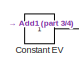
[diagram: Estimate Attitude/QUEST - part 1/4, top center region]
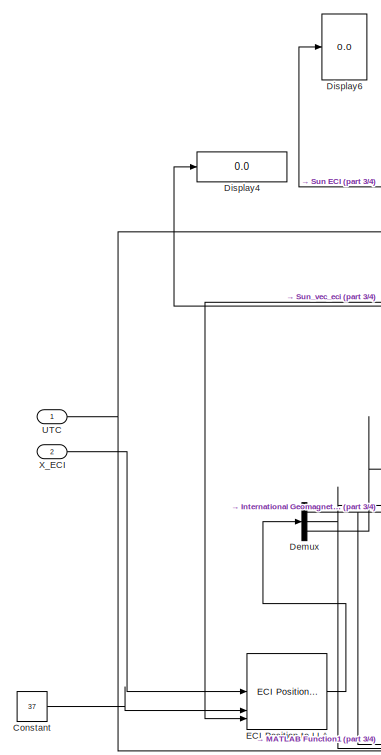
[diagram: Estimate Attitude/QUEST - part 2/4, left side, full height]
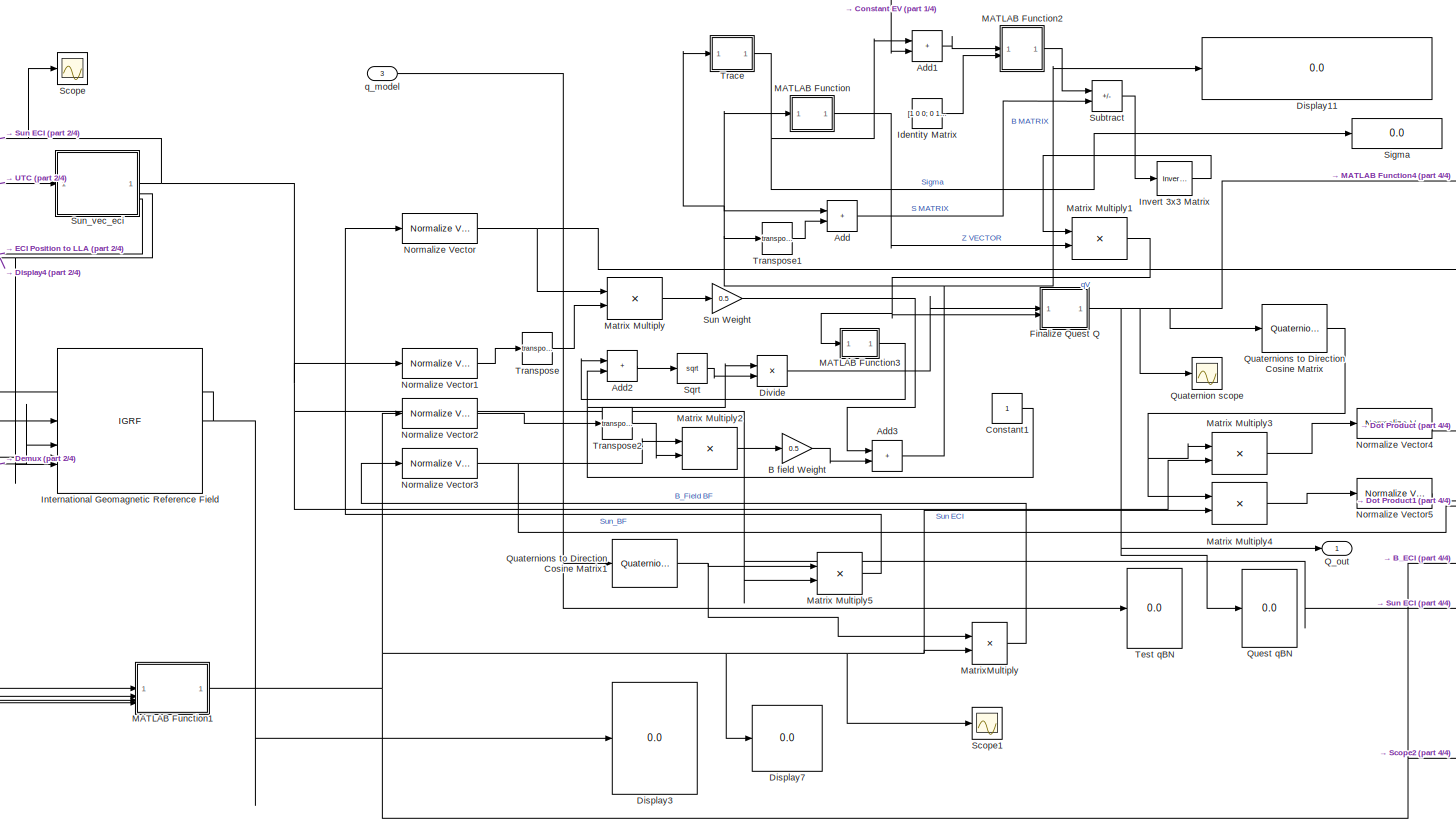
[diagram: Estimate Attitude/QUEST - part 3/4, center side, full height]
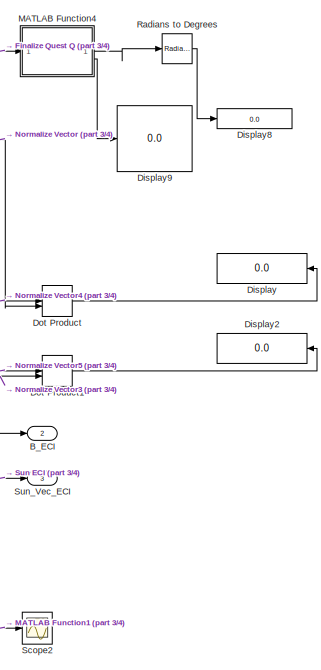
[diagram: Estimate Attitude/QUEST - part 4/4, middle right region]
BLOCK [SubSystem] Estimate Attitude/QUEST
  PortSchema = {"entries":[{"content":{"sides":[{"content":{"connectorIds":["In1","In2"]},"type":"ConnectorPlacement.EquallySpacedRectSide","uuid":"d9c028fa-a02f-4cb7-9f20-ffb15f38696f"},{"content":{"connectorIds":["Out1","Out2","Out3"],"side":"RIGHT"},"type":"ConnectorPlacement.EquallySpacedRectSide","uuid":"b35fd987-9710-478a-a6a2-9a386e56d3f0"},{"content":{"connectorIds":["In3"],"side":"TOP"},"type":"Connecto...<+265ch>
BLOCK [Sum] Estimate Attitude/QUEST/Add
  IconShape = rectangular
BLOCK [Sum] Estimate Attitude/QUEST/Add1
  IconShape = rectangular
BLOCK [Sum] Estimate Attitude/QUEST/Add2
  IconShape = rectangular
BLOCK [Sum] Estimate Attitude/QUEST/Add3
  IconShape = rectangular
BLOCK [Gain] Estimate Attitude/QUEST/B field Weight
  Gain = 0.5
BLOCK [Outport] Estimate Attitude/QUEST/B_ECI
  Port = 2
BLOCK [Constant] Estimate Attitude/QUEST/Constant
  Value = 37
BLOCK [Constant] Estimate Attitude/QUEST/Constant EV
BLOCK [Constant] Estimate Attitude/QUEST/Constant1
BLOCK [Demux] Estimate Attitude/QUEST/Demux
  Outputs = 3
BLOCK [Display] Estimate Attitude/QUEST/Display
  Decimation = 1
  NameLocation = top
BLOCK [Display] Estimate Attitude/QUEST/Display11
  Decimation = 1
BLOCK [Display] Estimate Attitude/QUEST/Display2
  Decimation = 1
  NameLocation = top
BLOCK [Display] Estimate Attitude/QUEST/Display3
  Decimation = 1
BLOCK [Display] Estimate Attitude/QUEST/Display4
  Decimation = 1
BLOCK [Display] Estimate Attitude/QUEST/Display6
  Decimation = 1
BLOCK [Display] Estimate Attitude/QUEST/Display7
  Decimation = 1
BLOCK [Display] Estimate Attitude/QUEST/Display8
  Decimation = 1
BLOCK [Display] Estimate Attitude/QUEST/Display9
  Decimation = 1
BLOCK [Product] Estimate Attitude/QUEST/Divide
  Inputs = */
BLOCK [DotProduct] Estimate Attitude/QUEST/Dot Product
  OutDataTypeStr = Inherit: Inherit via internal rule
BLOCK [DotProduct] Estimate Attitude/QUEST/Dot Product1
  OutDataTypeStr = Inherit: Inherit via internal rule
BLOCK [Reference] Estimate Attitude/QUEST/ECI Position to LLA  REF=aerolibtransform2/ECI Position to LLA
  AttributesFormatString = %<red>
  SourceBlock = aerolibtransform2/ECI Position to LLA
  SourceType = ECItoLLA
BLOCK [SubSystem] Estimate Attitude/QUEST/Finalize Quest Q
  ErrorFcn = Stateflow.Translate.translate
  PermitHierarchicalResolution = ExplicitOnly
  SFBlockType = MATLAB Function
  TreatAsAtomicUnit = on
BLOCK [Demux] Estimate Attitude/QUEST/Finalize Quest Q/ Demux 
  Outputs = 1
BLOCK [S-Function] Estimate Attitude/QUEST/Finalize Quest Q/ SFunction 
  EnableBusSupport = off
  FunctionName = sf_sfun
  PortCounts = [2 2]
  SFcnIsStateOwnerBlock = off
  SFunctionDeploymentMode = off
  Tag = Stateflow S-Function 15
BLOCK [Terminator] Estimate Attitude/QUEST/Finalize Quest Q/ Terminator 
BLOCK [Inport] Estimate Attitude/QUEST/Finalize Quest Q/u
  Port = 2
BLOCK [Inport] Estimate Attitude/QUEST/Finalize Quest Q/x
BLOCK [Outport] Estimate Attitude/QUEST/Finalize Quest Q/y
BLOCK [Constant] Estimate Attitude/QUEST/Identity Matrix
  Value = [1 0 0; 0 1 0; 0 0 1]
BLOCK [IGRF] Estimate Attitude/QUEST/International Geomagnetic Reference Field
  AttributesFormatString = %<generation>
  day = 1
  month = January
  year = 2020
BLOCK [Reference] Estimate Attitude/QUEST/Invert 3x3 Matrix  REF=aerolibutil/Invert 
3x3 Matrix
  SourceBlock = aerolibutil/Invert \n3x3 Matrix
  SourceType = Invert 3x3 Matrix
BLOCK [SubSystem] Estimate Attitude/QUEST/MATLAB Function
  ErrorFcn = Stateflow.Translate.translate
  PermitHierarchicalResolution = ExplicitOnly
  SFBlockType = MATLAB Function
  TreatAsAtomicUnit = on
BLOCK [Demux] Estimate Attitude/QUEST/MATLAB Function/ Demux 
  Outputs = 1
BLOCK [S-Function] Estimate Attitude/QUEST/MATLAB Function/ SFunction 
  EnableBusSupport = off
  FunctionName = sf_sfun
  PortCounts = [1 2]
  SFcnIsStateOwnerBlock = off
  SFunctionDeploymentMode = off
  Tag = Stateflow S-Function 14
BLOCK [Terminator] Estimate Attitude/QUEST/MATLAB Function/ Terminator 
BLOCK [Inport] Estimate Attitude/QUEST/MATLAB Function/x
BLOCK [Outport] Estimate Attitude/QUEST/MATLAB Function/y
BLOCK [SubSystem] Estimate Attitude/QUEST/MATLAB Function1
  ErrorFcn = Stateflow.Translate.translate
  PermitHierarchicalResolution = ExplicitOnly
  SFBlockType = MATLAB Function
  TreatAsAtomicUnit = on
BLOCK [Demux] Estimate Attitude/QUEST/MATLAB Function1/ Demux 
  Outputs = 1
BLOCK [S-Function] Estimate Attitude/QUEST/MATLAB Function1/ SFunction 
  EnableBusSupport = off
  FunctionName = sf_sfun
  PortCounts = [4 2]
  SFcnIsStateOwnerBlock = off
  SFunctionDeploymentMode = off
  Tag = Stateflow S-Function 21
BLOCK [Terminator] Estimate Attitude/QUEST/MATLAB Function1/ Terminator 
BLOCK [Outport] Estimate Attitude/QUEST/MATLAB Function1/B_ECI
BLOCK [Inport] Estimate Attitude/QUEST/MATLAB Function1/B_NED
BLOCK [Inport] Estimate Attitude/QUEST/MATLAB Function1/JD
  Port = 4
BLOCK [Inport] Estimate Attitude/QUEST/MATLAB Function1/lat
  Port = 2
BLOCK [Inport] Estimate Attitude/QUEST/MATLAB Function1/lon
  Port = 3
BLOCK [SubSystem] Estimate Attitude/QUEST/MATLAB Function2
  ErrorFcn = Stateflow.Translate.translate
  PermitHierarchicalResolution = ExplicitOnly
  SFBlockType = MATLAB Function
  TreatAsAtomicUnit = on
BLOCK [Demux] Estimate Attitude/QUEST/MATLAB Function2/ Demux 
  Outputs = 1
BLOCK [S-Function] Estimate Attitude/QUEST/MATLAB Function2/ SFunction 
  EnableBusSupport = off
  FunctionName = sf_sfun
  PortCounts = [2 2]
  SFcnIsStateOwnerBlock = off
  SFunctionDeploymentMode = off
  Tag = Stateflow S-Function 16
BLOCK [Terminator] Estimate Attitude/QUEST/MATLAB Function2/ Terminator 
BLOCK [Inport] Estimate Attitude/QUEST/MATLAB Function2/u
BLOCK [Inport] Estimate Attitude/QUEST/MATLAB Function2/x
  Port = 2
BLOCK [Outport] Estimate Attitude/QUEST/MATLAB Function2/y
BLOCK [SubSystem] Estimate Attitude/QUEST/MATLAB Function3
  ErrorFcn = Stateflow.Translate.translate
  PermitHierarchicalResolution = ExplicitOnly
  SFBlockType = MATLAB Function
  TreatAsAtomicUnit = on
BLOCK [Demux] Estimate Attitude/QUEST/MATLAB Function3/ Demux 
  Outputs = 1
BLOCK [S-Function] Estimate Attitude/QUEST/MATLAB Function3/ SFunction 
  EnableBusSupport = off
  FunctionName = sf_sfun
  PortCounts = [1 2]
  SFcnIsStateOwnerBlock = off
  SFunctionDeploymentMode = off
  Tag = Stateflow S-Function 17
BLOCK [Terminator] Estimate Attitude/QUEST/MATLAB Function3/ Terminator 
BLOCK [Inport] Estimate Attitude/QUEST/MATLAB Function3/u
BLOCK [Outport] Estimate Attitude/QUEST/MATLAB Function3/y
BLOCK [SubSystem] Estimate Attitude/QUEST/MATLAB Function4
  ErrorFcn = Stateflow.Translate.translate
  PermitHierarchicalResolution = ExplicitOnly
  SFBlockType = MATLAB Function
  TreatAsAtomicUnit = on
BLOCK [Demux] Estimate Attitude/QUEST/MATLAB Function4/ Demux 
  Outputs = 1
BLOCK [S-Function] Estimate Attitude/QUEST/MATLAB Function4/ SFunction 
  EnableBusSupport = off
  FunctionName = sf_sfun
  PortCounts = [1 3]
  SFcnIsStateOwnerBlock = off
  SFunctionDeploymentMode = off
  Tag = Stateflow S-Function 18
BLOCK [Terminator] Estimate Attitude/QUEST/MATLAB Function4/ Terminator 
BLOCK [Outport] Estimate Attitude/QUEST/MATLAB Function4/axis
  Port = 2
BLOCK [Outport] Estimate Attitude/QUEST/MATLAB Function4/theta
BLOCK [Inport] Estimate Attitude/QUEST/MATLAB Function4/u
BLOCK [Product] Estimate Attitude/QUEST/Matrix Multiply
  Multiplication = Matrix(*)
BLOCK [Product] Estimate Attitude/QUEST/Matrix Multiply1
  Multiplication = Matrix(*)
BLOCK [Product] Estimate Attitude/QUEST/Matrix Multiply2
  Multiplication = Matrix(*)
BLOCK [Product] Estimate Attitude/QUEST/Matrix Multiply3
  Multiplication = Matrix(*)
BLOCK [Product] Estimate Attitude/QUEST/Matrix Multiply4
  Multiplication = Matrix(*)
BLOCK [Product] Estimate Attitude/QUEST/Matrix Multiply5
  Multiplication = Matrix(*)
BLOCK [Product] Estimate Attitude/QUEST/MatrixMultiply
  Multiplication = Matrix(*)
BLOCK [Reference] Estimate Attitude/QUEST/Normalize Vector  REF=vrlib/Utilities/Normalize Vector
  SourceBlock = vrlib/Utilities/Normalize Vector
  SourceType = Normalize Vector
BLOCK [Reference] Estimate Attitude/QUEST/Normalize Vector1  REF=vrlib/Utilities/Normalize Vector
  SourceBlock = vrlib/Utilities/Normalize Vector
  SourceType = Normalize Vector
BLOCK [Reference] Estimate Attitude/QUEST/Normalize Vector2  REF=vrlib/Utilities/Normalize Vector
  SourceBlock = vrlib/Utilities/Normalize Vector
  SourceType = Normalize Vector
BLOCK [Reference] Estimate Attitude/QUEST/Normalize Vector3  REF=vrlib/Utilities/Normalize Vector
  SourceBlock = vrlib/Utilities/Normalize Vector
  SourceType = Normalize Vector
BLOCK [Reference] Estimate Attitude/QUEST/Normalize Vector4  REF=vrlib/Utilities/Normalize Vector
  SourceBlock = vrlib/Utilities/Normalize Vector
  SourceType = Normalize Vector
BLOCK [Reference] Estimate Attitude/QUEST/Normalize Vector5  REF=vrlib/Utilities/Normalize Vector
  SourceBlock = vrlib/Utilities/Normalize Vector
  SourceType = Normalize Vector
BLOCK [Outport] Estimate Attitude/QUEST/Q_out
BLOCK [Scope] Estimate Attitude/QUEST/Quaternion scope
  ActiveDisplayYMaximum = 1.336803706475939
  ActiveDisplayYMinimum = -1.3373181480846994
  DataLoggingVariableName = ScopeData1
  Floating = off
  GraphicalSettings = {"Style":{"BackgroundColor":[0.12941176470588237,0.12941176470588237,0.12941176470588237],"AxesColor":[0.07058823529411765,0.07058823529411765,0.07058823529411765],"LabelsColor":[0.8509803921568627,0.8509803921568627,0.8509803921568627],"PreserveColors":false,"Visible":[true,true,true,true],"LineStyle":["-","-","-","-"],"LineWidth":[1.5,1.5,1.5,1.5],"BarWidth":[0.9,0.9,0.9,0.9],"LineColor":["auto"...<+2432ch>
  MultipleDisplayCache = [{"MaxYLimMag":1.2393998806353188,"MaxYLimReal":1.336803706475939,"MinYLimMag":0,"MinYLimReal":-1.3373181480846994,"PlotAsMagnitudePhase":false,"ShowGrid":true,"ShowLegend":false,"Title":"%<SignalLabel>","YLabel":""}]
  NumInputPorts = 1
  ScopeFrameLocation = container
  Visible = on
  WasSavedAsWebScope = on
  WindowPosition = [359.000000,-3.000000,674.000000,687.000000,]
BLOCK [Reference] Estimate Attitude/QUEST/Quaternions to Direction Cosine Matrix  REF=sharedtransform/Quaternions to 
Direction Cosine Matrix
  SourceBlock = sharedtransform/Quaternions to \nDirection Cosine Matrix
  SourceType = Quaternion2DCM
BLOCK [Reference] Estimate Attitude/QUEST/Quaternions to Direction Cosine Matrix1  REF=sharedtransform/Quaternions to 
Direction Cosine Matrix
  SourceBlock = sharedtransform/Quaternions to \nDirection Cosine Matrix
  SourceType = Quaternion2DCM
BLOCK [Display] Estimate Attitude/QUEST/Quest qBN
  Decimation = 1
BLOCK [Reference] Estimate Attitude/QUEST/Radians to Degrees  REF=simulink_extras/Transformations/Radians
to Degrees
  SourceBlock = simulink_extras/Transformations/Radians\nto Degrees
  SourceType = RadiansToDegrees
BLOCK [Scope] Estimate Attitude/QUEST/Scope
  ActiveDisplayYMaximum = 0.0072133154143029787
  ActiveDisplayYMinimum = -1.0754499109455182
  DataLoggingVariableName = ScopeData1
  Floating = off
  GraphicalSettings = {"GraphicalSettings":{"LegacySettings":true,"Style":{"Style":{"AxesColor":"[0 0 0]","ChannelNames":[""],"ColorOrder":"[1 0.909803921568627 0.392156862745098;0.149019607843137 0.549019607843137 0.866666666666667;0.96078431372549 0.466666666666667 0.16078431372549;0.286274509803922 0.858823529411765 0.250980392156863;0.752941176470588 0.36078431372549 0.984313725490196;0.423529411764706 0.9568627450...<+485ch>
  MultipleDisplayCache = [{"MaxYLimMag":1.0754499109455182,"MaxYLimReal":0.0072133154143029787,"MinYLimMag":0,"MinYLimReal":-1.0754499109455182,"PlotAsMagnitudePhase":false,"ShowGrid":true,"ShowLegend":false,"Title":"%<SignalLabel>","YLabel":""}]
  NumInputPorts = 1
  ScopeFrameLocation = container
  Visible = on
  WasSavedAsWebScope = on
  WindowPosition = [359.000000,-3.000000,674.000000,687.000000,]
BLOCK [Scope] Estimate Attitude/QUEST/Scope1
  ActiveDisplayYMaximum = 1
  ActiveDisplayYMinimum = -1
  ContainerLayout = {"WindowBounds":[-8,-12,1293,803],"gridDimensions":{"w":1,"h":1},"tileCount":1,"tileCoverage":1,"columnWeights":1,"rowWeights":1,"tileOccupancy":{"children":[{"id":"/Degree Error"},{"id":"/Control Torque"},{"id":"/Omega Rates"}]}}
  DataLoggingVariableName = ScopeData2
  Floating = off
  GraphicalSettings = {"GraphicalSettings":{"LegacySettings":true,"Style":{"Style":{"AxesColor":"[0 0 0]","ChannelNames":[""],"ColorOrder":"[1 0.909803921568627 0.392156862745098;0.149019607843137 0.549019607843137 0.866666666666667;0.96078431372549 0.466666666666667 0.16078431372549;0.286274509803922 0.858823529411765 0.250980392156863;0.752941176470588 0.36078431372549 0.984313725490196;0.423529411764706 0.9568627450...<+525ch>
  MultipleDisplayCache = [{"MaxYLimMag":1,"MaxYLimReal":1,"MinYLimMag":0,"MinYLimReal":-1,"PlotAsMagnitudePhase":false,"ShowGrid":true,"ShowLegend":false,"Title":"%<SignalLabel>","YLabel":""}]
  NumInputPorts = 1
  ScopeFrameLocation = container
  WasSavedAsWebScope = on
  WindowPosition = [0.000000,16.000000,1280.000000,768.000000,]
BLOCK [Scope] Estimate Attitude/QUEST/Scope2
  ActiveDisplayYMaximum = 7667.7859361134633
  ActiveDisplayYMinimum = -2220.8584339639051
  DataLoggingVariableName = ScopeData26
  Floating = off
  GraphicalSettings = {"Style":{"BackgroundColor":[0.12941176470588237,0.12941176470588237,0.12941176470588237],"AxesColor":[0.07058823529411765,0.07058823529411765,0.07058823529411765],"LabelsColor":[0.8509803921568627,0.8509803921568627,0.8509803921568627],"PreserveColors":false,"Visible":[true,true,true],"LineStyle":["-","-","-"],"LineWidth":[1.5,1.5,1.5],"BarWidth":[0.9,0.9,0.9],"LineColor":["auto","auto","auto"],"...<+2258ch>
  MultipleDisplayCache = [{"MaxYLimMag":10,"MaxYLimReal":7667.7859361134633,"MinYLimMag":0,"MinYLimReal":-2220.8584339639051,"PlotAsMagnitudePhase":false,"ShowGrid":true,"ShowLegend":false,"Title":"%<SignalLabel>","YLabel":""}]
  NumInputPorts = 1
  ScopeFrameLocation = window
  Visible = on
  WasSavedAsWebScope = on
  WindowPosition = [360.000000,190.000000,560.000000,420.000000,]
BLOCK [Display] Estimate Attitude/QUEST/Sigma
  Decimation = 1
BLOCK [Sqrt] Estimate Attitude/QUEST/Sqrt
BLOCK [Sum] Estimate Attitude/QUEST/Subtract
  IconShape = rectangular
  Inputs = +-
BLOCK [Gain] Estimate Attitude/QUEST/Sun Weight
  Gain = 0.5
BLOCK [Outport] Estimate Attitude/QUEST/Sun_Vec_ECI
  Port = 3
BLOCK [SubSystem] Estimate Attitude/QUEST/Sun_vec_eci
  ErrorFcn = Stateflow.Translate.translate
  PermitHierarchicalResolution = ExplicitOnly
  SFBlockType = MATLAB Function
  TreatAsAtomicUnit = on
BLOCK [Demux] Estimate Attitude/QUEST/Sun_vec_eci/ Demux 
  Outputs = 1
BLOCK [S-Function] Estimate Attitude/QUEST/Sun_vec_eci/ SFunction 
  EnableBusSupport = off
  FunctionName = sf_sfun
  PortCounts = [1 4]
  SFcnIsStateOwnerBlock = off
  SFunctionDeploymentMode = off
  Tag = Stateflow S-Function 25
BLOCK [Terminator] Estimate Attitude/QUEST/Sun_vec_eci/ Terminator 
BLOCK [Outport] Estimate Attitude/QUEST/Sun_vec_eci/day
  Port = 3
BLOCK [Outport] Estimate Attitude/QUEST/Sun_vec_eci/decyear
  Port = 2
BLOCK [Outport] Estimate Attitude/QUEST/Sun_vec_eci/sun_vec_eci
BLOCK [Inport] Estimate Attitude/QUEST/Sun_vec_eci/t_utc
BLOCK [Display] Estimate Attitude/QUEST/Test qBN
  Decimation = 1
BLOCK [SubSystem] Estimate Attitude/QUEST/Trace
  ErrorFcn = Stateflow.Translate.translate
  PermitHierarchicalResolution = ExplicitOnly
  SFBlockType = MATLAB Function
  TreatAsAtomicUnit = on
BLOCK [Demux] Estimate Attitude/QUEST/Trace/ Demux 
  Outputs = 1
BLOCK [S-Function] Estimate Attitude/QUEST/Trace/ SFunction 
  EnableBusSupport = off
  FunctionName = sf_sfun
  PortCounts = [1 2]
  SFcnIsStateOwnerBlock = off
  SFunctionDeploymentMode = off
  Tag = Stateflow S-Function 26
BLOCK [Terminator] Estimate Attitude/QUEST/Trace/ Terminator 
BLOCK [Inport] Estimate Attitude/QUEST/Trace/x
BLOCK [Outport] Estimate Attitude/QUEST/Trace/y
BLOCK [Math] Estimate Attitude/QUEST/Transpose
  Operator = transpose
BLOCK [Math] Estimate Attitude/QUEST/Transpose1
  Operator = transpose
BLOCK [Math] Estimate Attitude/QUEST/Transpose2
  Operator = transpose
BLOCK [Inport] Estimate Attitude/QUEST/UTC
BLOCK [Inport] Estimate Attitude/QUEST/X_ECI
  Port = 2
BLOCK [Inport] Estimate Attitude/QUEST/q_model
  Port = 3
BLOCK [Reference] Estimate Attitude/Quaternion Normalize  REF=sharedutil/Quaternion
Normalize
  LibrarySourceBlock = aerolibutil/Quaternion\nNormalize
  SourceBlock = sharedutil/Quaternion\nNormalize
  SourceType = Quaternion Normalize
BLOCK [Outport] Estimate Attitude/S_ECI
  Port = 2
BLOCK [Inport] Estimate Attitude/UTC
  NameLocation = top
BLOCK [Inport] Estimate Attitude/W
  Port = 4
BLOCK [Inport] Estimate Attitude/X_ECI
  Port = 2
BLOCK [Outport] Estimate Attitude/q_BN
BLOCK [Inport] Estimate Attitude/q_BN initial
  Port = 3
BLOCK [SubSystem] PD Controller
  PortSchema = {"entries":[{"content":{"sides":[{"content":{"connectorIds":["In1","In2","In3","In4","In5","In6","In7"]},"type":"ConnectorPlacement.EquallySpacedRectSide","uuid":"e7cfb03b-fdce-49bd-b114-b6383fec3453"},{"content":{"connectorIds":["In8","Out1"],"side":"RIGHT"},"type":"ConnectorPlacement.EquallySpacedRectSide","uuid":"354243bd-d6fe-41fe-9aaf-62ec8dd6b288"},{"content":{"connectorIds":["Out2"],"side":...<+288ch>
BLOCK [Display] PD Controller/ Control Torque
  Decimation = 1
BLOCK [SubSystem] PD Controller/Calculate Error
  ErrorFcn = Stateflow.Translate.translate
  PermitHierarchicalResolution = ExplicitOnly
  SFBlockType = MATLAB Function
  TreatAsAtomicUnit = on
BLOCK [Demux] PD Controller/Calculate Error/ Demux 
  Outputs = 1
BLOCK [S-Function] PD Controller/Calculate Error/ SFunction 
  EnableBusSupport = off
  FunctionName = sf_sfun
  PortCounts = [2 2]
  SFcnIsStateOwnerBlock = off
  SFunctionDeploymentMode = off
  Tag = Stateflow S-Function 6
BLOCK [Terminator] PD Controller/Calculate Error/ Terminator 
BLOCK [Outport] PD Controller/Calculate Error/q
BLOCK [Inport] PD Controller/Calculate Error/q1
BLOCK [Inport] PD Controller/Calculate Error/q2
  Port = 2
BLOCK [Inport] PD Controller/Desired rates
BLOCK [DiscreteIntegrator] PD Controller/Discrete-Time Integrator
  ICPrevOutput = DiscIntNeverNeededParam
  ICPrevScaledInput = DiscIntNeverNeededParam
  InitialCondition = [0;0;0]
  InitialConditionSetting = Auto
  SampleTime = 0.1
BLOCK [Outport] PD Controller/Error Q
  Port = 2
BLOCK [Inport] PD Controller/Error Quaternion(W//O GPS)
  Port = 8
BLOCK [Constant] PD Controller/GPS ON//OFF
BLOCK [Gain] PD Controller/Gain
BLOCK [Inport] PD Controller/Gyro rates
  Port = 4
BLOCK [Inport] PD Controller/Kd
  Port = 6
BLOCK [Inport] PD Controller/Ki
  Port = 7
BLOCK [Inport] PD Controller/Kp
  Port = 5
BLOCK [Product] PD Controller/Product
BLOCK [Product] PD Controller/Product1
BLOCK [Product] PD Controller/Product2
BLOCK [Selector] PD Controller/Selector
  IndexOptions = Index vector (dialog)
  Indices = [2 : 4]
  InputPortWidth = 4
  OutputSizes = 1
BLOCK [Sum] PD Controller/Subtract
  IconShape = rectangular
  Inputs = ---
BLOCK [Sum] PD Controller/Subtract2
  IconShape = rectangular
  Inputs = +-
BLOCK [Switch] PD Controller/Switch
  Criteria = u2 > Threshold
  InputSameDT = off
  SaturateOnIntegerOverflow = off
BLOCK [Outport] PD Controller/control torque
BLOCK [Inport] PD Controller/qNR
  Port = 2
BLOCK [Inport] PD Controller/q_BN
  Port = 3
BLOCK [Scope] Quat Diff
  ActiveDisplayYMaximum = 3.4846862195685198
  ActiveDisplayYMinimum = -2.4278695362681826
  DataLoggingVariableName = ScopeData1
  Floating = off
  GraphicalSettings = {"Style":{"BackgroundColor":[0.12941176470588237,0.12941176470588237,0.12941176470588237],"AxesColor":[0.07058823529411765,0.07058823529411765,0.07058823529411765],"LabelsColor":[0.8509803921568627,0.8509803921568627,0.8509803921568627],"PreserveColors":false,"Visible":[true,true,true,true],"LineStyle":["-","-","-","-"],"LineWidth":[1.5,1.5,1.5,1.5],"BarWidth":[0.9,0.9,0.9,0.9],"LineColor":["auto"...<+2370ch>
  MultipleDisplayCache = [{"MaxYLimMag":1.1145448513366278,"MaxYLimReal":3.4846862195685198,"MinYLimMag":0,"MinYLimReal":-2.4278695362681826,"PlotAsMagnitudePhase":false,"ShowGrid":true,"ShowLegend":false,"Title":"%<SignalLabel>","YLabel":""}]
  NumInputPorts = 1
  ScopeFrameLocation = container
  Visible = on
  WasSavedAsWebScope = on
  WindowPosition = [359.000000,-3.000000,674.000000,687.000000,]
BLOCK [Reference] Quaternion Inverse  REF=aerolibutil/Quaternion
Inverse
  SourceBlock = aerolibutil/Quaternion\nInverse
  SourceType = Quaternion Inverse
BLOCK [Reference] Radians to Degrees  REF=simulink_extras/Transformations/Radians
to Degrees
  SourceBlock = simulink_extras/Transformations/Radians\nto Degrees
  SourceType = RadiansToDegrees
BLOCK [Scope] Scope
  ActiveDisplayYMaximum = 1.3194577353207935
  ActiveDisplayYMinimum = -1.3627045234786557
  DataLoggingVariableName = ScopeData20
  Floating = off
  GraphicalSettings = {"Style":{"BackgroundColor":[0.12941176470588237,0.12941176470588237,0.12941176470588237],"AxesColor":[0.07058823529411765,0.07058823529411765,0.07058823529411765],"LabelsColor":[0.8509803921568627,0.8509803921568627,0.8509803921568627],"PreserveColors":false,"Visible":[true],"LineStyle":["-"],"LineWidth":[1.5],"BarWidth":[0.9],"LineColor":["auto"],"LineFaceAlpha":[1],"LineEdgeAlpha":[1],"Marker":...<+1991ch>
  MultipleDisplayCache = [{"MaxYLimMag":10,"MaxYLimReal":1.3194577353207935,"MinYLimMag":0,"MinYLimReal":-1.3627045234786557,"PlotAsMagnitudePhase":false,"ShowGrid":true,"ShowLegend":false,"Title":"%<SignalLabel>","YLabel":""}]
  NumInputPorts = 1
  ScopeFrameLocation = window
  Visible = on
  WasSavedAsWebScope = on
  WindowPosition = [93.000000,113.000000,560.000000,420.000000,]
BLOCK [Scope] Scope1
  ActiveDisplayYMaximum = 242.34455590666121
  ActiveDisplayYMinimum = -45.683444261397909
  Floating = off
  GraphicalSettings = {"Style":{"BackgroundColor":[0.12941176470588237,0.12941176470588237,0.12941176470588237],"AxesColor":[0.07058823529411765,0.07058823529411765,0.07058823529411765],"LabelsColor":[0.8509803921568627,0.8509803921568627,0.8509803921568627],"PreserveColors":false,"Visible":[true],"LineStyle":["-"],"LineWidth":[1.5],"BarWidth":[0.9],"LineColor":["auto"],"LineFaceAlpha":[1],"LineEdgeAlpha":[1],"Marker":...<+2017ch>
  MultipleDisplayCache = [{"MaxYLimMag":193.39045579085663,"MaxYLimReal":242.34455590666121,"MinYLimMag":0,"MinYLimReal":-45.683444261397909,"PlotAsMagnitudePhase":false,"ShowGrid":true,"ShowLegend":false,"Title":"%<SignalLabel>","YLabel":""}]
  NumInputPorts = 1
  ScopeFrameLocation = window
  Visible = on
  WasSavedAsWebScope = on
  WindowPosition = [360.000000,190.000000,560.000000,420.000000,]
BLOCK [Scope] Scope2
  ActiveDisplayYMaximum = 0.053344235105624381
  ActiveDisplayYMinimum = -0.049023618009409159
  DataLoggingVariableName = ScopeData6
  Floating = off
  GraphicalSettings = {"Style":{"BackgroundColor":[0.12941176470588237,0.12941176470588237,0.12941176470588237],"AxesColor":[0.07058823529411765,0.07058823529411765,0.07058823529411765],"LabelsColor":[0.8509803921568627,0.8509803921568627,0.8509803921568627],"PreserveColors":false,"Visible":[true,true,true],"LineStyle":["-","-","-"],"LineWidth":[1.5,1.5,1.5],"BarWidth":[0.9,0.9,0.9],"LineColor":["auto","auto","auto"],"...<+2292ch>
  MultipleDisplayCache = [{"MaxYLimMag":0.13704957862217471,"MaxYLimReal":0.053344235105624381,"MinYLimMag":0,"MinYLimReal":-0.049023618009409159,"PlotAsMagnitudePhase":false,"ShowGrid":true,"ShowLegend":false,"Title":"%<SignalLabel>","YLabel":""}]
  NumInputPorts = 1
  ScopeFrameLocation = window
  Visible = on
  WasSavedAsWebScope = on
  WindowPosition = [360.000000,190.000000,560.000000,420.000000,]
BLOCK [Scope] Scope3
  ActiveDisplayYMaximum = 0.19416046551698385
  ActiveDisplayYMinimum = -0.32288965159303823
  DataLoggingVariableName = ScopeData14
  Floating = off
  GraphicalSettings = {"Style":{"BackgroundColor":[0.12941176470588237,0.12941176470588237,0.12941176470588237],"AxesColor":[0.07058823529411765,0.07058823529411765,0.07058823529411765],"LabelsColor":[0.8509803921568627,0.8509803921568627,0.8509803921568627],"PreserveColors":false,"Visible":[true,true,true],"LineStyle":["-","-","-"],"LineWidth":[1.5,1.5,1.5],"BarWidth":[0.9,0.9,0.9],"LineColor":["auto","auto","auto"],"...<+2322ch>
  MultipleDisplayCache = [{"MaxYLimMag":0.2621665928599835,"MaxYLimReal":0.19416046551698385,"MinYLimMag":0,"MinYLimReal":-0.32288965159303823,"PlotAsMagnitudePhase":false,"ShowGrid":true,"ShowLegend":false,"Title":"%<SignalLabel>","YLabel":""}]
  NumInputPorts = 1
  ScopeFrameLocation = window
  Visible = on
  WasSavedAsWebScope = on
  WindowPosition = [360.000000,190.000000,560.000000,420.000000,]
BLOCK [SubSystem] Simulate Omega Rates
  PortSchema = {"entries":[{"content":{"sides":[{"content":{"connectorIds":["In1","In2","In3"]},"type":"ConnectorPlacement.EquallySpacedRectSide","uuid":"e90ec8a0-4b74-4e10-b2a7-e5fd2ae1e771"},{"content":{"connectorIds":["Out1","In5"],"side":"RIGHT"},"type":"ConnectorPlacement.EquallySpacedRectSide","uuid":"99d2540c-d7ae-4cc6-9c8c-9f3376bc2204"},{"content":{"connectorIds":["In4"],"side":"TOP"},"type":"ConnectorP...<+389ch>
BLOCK [Sum] Simulate Omega Rates/Add
  IconShape = rectangular
BLOCK [Inport] Simulate Omega Rates/B_ECI 
  Port = 2
BLOCK [SubSystem] Simulate Omega Rates/Clamp WS
  ErrorFcn = Stateflow.Translate.translate
  PermitHierarchicalResolution = ExplicitOnly
  SFBlockType = MATLAB Function
  TreatAsAtomicUnit = on
BLOCK [Demux] Simulate Omega Rates/Clamp WS/ Demux 
  Outputs = 1
BLOCK [S-Function] Simulate Omega Rates/Clamp WS/ SFunction 
  EnableBusSupport = off
  FunctionName = sf_sfun
  PortCounts = [1 2]
  SFcnIsStateOwnerBlock = off
  SFunctionDeploymentMode = off
  Tag = Stateflow S-Function 22
BLOCK [Terminator] Simulate Omega Rates/Clamp WS/ Terminator 
BLOCK [Inport] Simulate Omega Rates/Clamp WS/u
BLOCK [Outport] Simulate Omega Rates/Clamp WS/y
BLOCK [Inport] Simulate Omega Rates/Control Torque
  Port = 3
BLOCK [Reference] Simulate Omega Rates/Cross Product  REF=matrix_library/Cross Product
  LibrarySourceBlock = simulink/Matrix\nOperations/Cross Product
  SourceBlock = matrix_library/Cross Product
  SourceType = CrossProduct
BLOCK [DiscreteIntegrator] Simulate Omega Rates/Discrete-Time Integrator
  ICPrevOutput = DiscIntNeverNeededParam
  ICPrevScaledInput = DiscIntNeverNeededParam
  InitialCondition = [0.12; -0.2; -0.05]
  InitialConditionSetting = Auto
  SampleTime = 0.1
  gainval = 1
BLOCK [DiscreteIntegrator] Simulate Omega Rates/Discrete-Time Integrator1
  ICPrevOutput = DiscIntNeverNeededParam
  ICPrevScaledInput = DiscIntNeverNeededParam
  InitialCondition = [261.8; -261.8; 261.8; -261.8]
  InitialConditionSetting = Auto
  SampleTime = 0.1
BLOCK [Gain] Simulate Omega Rates/Gain
  Gain = 1/0.000029382450521
BLOCK [SubSystem] Simulate Omega Rates/Gravity Gradient Torque
  ErrorFcn = Stateflow.Translate.translate
  PermitHierarchicalResolution = ExplicitOnly
  SFBlockType = MATLAB Function
  TreatAsAtomicUnit = on
BLOCK [Demux] Simulate Omega Rates/Gravity Gradient Torque/ Demux 
  Outputs = 1
BLOCK [S-Function] Simulate Omega Rates/Gravity Gradient Torque/ SFunction 
  EnableBusSupport = off
  FunctionName = sf_sfun
  PortCounts = [2 2]
  SFcnIsStateOwnerBlock = off
  SFunctionDeploymentMode = off
  Tag = Stateflow S-Function 10
BLOCK [Terminator] Simulate Omega Rates/Gravity Gradient Torque/ Terminator 
BLOCK [Inport] Simulate Omega Rates/Gravity Gradient Torque/J
BLOCK [Outport] Simulate Omega Rates/Gravity Gradient Torque/Tgg
BLOCK [Inport] Simulate Omega Rates/Gravity Gradient Torque/pos_bf
  Port = 2
BLOCK [Constant] Simulate Omega Rates/GsValues1
  Value = [-0.390731128489274,-0.390731128489274,0.390731128489274,0.390731128489274;0.0,0.920504853452440,0.920504853452440,0.0;0.920504853452440,0.0,0.0,0.920504853452440]
BLOCK [Reference] Simulate Omega Rates/Invert 3x3 Matrix  REF=aerolibutil/Invert 
3x3 Matrix
  SourceBlock = aerolibutil/Invert \n3x3 Matrix
  SourceType = Invert 3x3 Matrix
BLOCK [Constant] Simulate Omega Rates/J Matrix
  Value = [0.0797 -0.00005 0.00125 ;-0.00005 0.1291 -0.00103;0.00125 -0.00103 0.1310]
BLOCK [Product] Simulate Omega Rates/Matrix Multiply
  Multiplication = Matrix(*)
BLOCK [Product] Simulate Omega Rates/Matrix Multiply1
  Multiplication = Matrix(*)
BLOCK [Product] Simulate Omega Rates/Matrix Multiply2
  Multiplication = Matrix(*)
BLOCK [Product] Simulate Omega Rates/MatrixMultiply
  Multiplication = Matrix(*)
BLOCK [Quat2Dcm] Simulate Omega Rates/Quaternions to Direction Cosine Matrix
BLOCK [Scope] Simulate Omega Rates/Scope
  ActiveDisplayYMaximum = 14008.488779620786
  ActiveDisplayYMinimum = -20476.902247355712
  DataLoggingVariableName = ScopeData27
  Floating = off
  GraphicalSettings = {"Style":{"BackgroundColor":[0.12941176470588237,0.12941176470588237,0.12941176470588237],"AxesColor":[0.07058823529411765,0.07058823529411765,0.07058823529411765],"LabelsColor":[0.8509803921568627,0.8509803921568627,0.8509803921568627],"PreserveColors":false,"Visible":[true,true,true],"LineStyle":["-","-","-"],"LineWidth":[1.5,1.5,1.5],"BarWidth":[0.9,0.9,0.9],"LineColor":["auto","auto","auto"],"...<+2233ch>
  MultipleDisplayCache = [{"MaxYLimMag":20476.902247355712,"MaxYLimReal":14008.488779620786,"MinYLimMag":0,"MinYLimReal":-20476.902247355712,"PlotAsMagnitudePhase":false,"ShowGrid":true,"ShowLegend":false,"Title":"%<SignalLabel>","YLabel":""}]
  NumInputPorts = 1
  ScopeFrameLocation = window
  Visible = on
  WasSavedAsWebScope = on
  WindowPosition = [360.000000,190.000000,560.000000,420.000000,]
BLOCK [Sum] Simulate Omega Rates/Subtract1
  IconShape = rectangular
  Inputs = ++-
BLOCK [Scope] Simulate Omega Rates/Total Commanded Torque
  ActiveDisplayYMaximum = 0.0068794540520053359
  ActiveDisplayYMinimum = -0.0075192349082615706
  DataLoggingVariableName = ScopeData7
  Floating = off
  GraphicalSettings = {"Style":{"BackgroundColor":[0.12941176470588237,0.12941176470588237,0.12941176470588237],"AxesColor":[0.07058823529411765,0.07058823529411765,0.07058823529411765],"LabelsColor":[0.8509803921568627,0.8509803921568627,0.8509803921568627],"PreserveColors":false,"Visible":[true,true,true],"LineStyle":["-","-","-"],"LineWidth":[1.5,1.5,1.5],"BarWidth":[0.9,0.9,0.9],"LineColor":["auto","auto","auto"],"...<+2227ch>
  MultipleDisplayCache = [{"MaxYLimMag":0.0075192349082615706,"MaxYLimReal":0.0068794540520053359,"MinYLimMag":0,"MinYLimReal":-0.0075192349082615706,"PlotAsMagnitudePhase":false,"ShowGrid":true,"ShowLegend":false,"Title":"%<SignalLabel>","YLabel":""}]
  NumInputPorts = 1
  ScopeFrameLocation = window
  Visible = on
  WasSavedAsWebScope = on
  WindowPosition = [360.000000,190.000000,560.000000,420.000000,]
BLOCK [Outport] Simulate Omega Rates/W
BLOCK [Inport] Simulate Omega Rates/W0
BLOCK [SubSystem] Simulate Omega Rates/Wheel Torque
  ErrorFcn = Stateflow.Translate.translate
  PermitHierarchicalResolution = ExplicitOnly
  SFBlockType = MATLAB Function
  TreatAsAtomicUnit = on
BLOCK [Scope] Simulate Omega Rates/Wheel Torque output
  ActiveDisplayYMaximum = 0.0049764737021494483
  ActiveDisplayYMinimum = -0.0066917259294539122
  DataLoggingVariableName = ScopeData13
  Floating = off
  GraphicalSettings = {"Style":{"BackgroundColor":[0.12941176470588237,0.12941176470588237,0.12941176470588237],"AxesColor":[0.07058823529411765,0.07058823529411765,0.07058823529411765],"LabelsColor":[0.8509803921568627,0.8509803921568627,0.8509803921568627],"PreserveColors":false,"Visible":[true,true,true,true],"LineStyle":["-","-","-","-"],"LineWidth":[1.5,1.5,1.5,1.5],"BarWidth":[0.9,0.9,0.9,0.9],"LineColor":["auto"...<+2406ch>
  MultipleDisplayCache = [{"MaxYLimMag":0.004,"MaxYLimReal":0.0049764737021494483,"MinYLimMag":0,"MinYLimReal":-0.0066917259294539122,"PlotAsMagnitudePhase":false,"ShowGrid":true,"ShowLegend":false,"Title":"%<SignalLabel>","YLabel":""}]
  NumInputPorts = 1
  ScopeFrameLocation = window
  WasSavedAsWebScope = on
  WindowPosition = [360.000000,190.000000,560.000000,420.000000,]
BLOCK [Demux] Simulate Omega Rates/Wheel Torque/ Demux 
  Outputs = 1
BLOCK [S-Function] Simulate Omega Rates/Wheel Torque/ SFunction 
  EnableBusSupport = off
  FunctionName = sf_sfun
  PortCounts = [4 4]
  SFcnIsStateOwnerBlock = off
  SFunctionDeploymentMode = off
  Tag = Stateflow S-Function 19
BLOCK [Terminator] Simulate Omega Rates/Wheel Torque/ Terminator 
BLOCK [Inport] Simulate Omega Rates/Wheel Torque/GsValues
  Port = 3
BLOCK [Inport] Simulate Omega Rates/Wheel Torque/L_R
  Port = 4
BLOCK [Inport] Simulate Omega Rates/Wheel Torque/mag_bf
  Port = 2
BLOCK [Outport] Simulate Omega Rates/Wheel Torque/t_3axis
  Port = 3
BLOCK [Outport] Simulate Omega Rates/Wheel Torque/tauMTB
  Port = 2
BLOCK [Outport] Simulate Omega Rates/Wheel Torque/us
BLOCK [Inport] Simulate Omega Rates/Wheel Torque/wheel_speeds
BLOCK [Scope] Simulate Omega Rates/WheelSpeeds
  ActiveDisplayYMaximum = 1073.2158250334398
  ActiveDisplayYMinimum = -114.37246424141858
  DataLoggingVariableName = ScopeData12
  Floating = off
  GraphicalSettings = {"Style":{"BackgroundColor":[0.12941176470588237,0.12941176470588237,0.12941176470588237],"AxesColor":[0.07058823529411765,0.07058823529411765,0.07058823529411765],"LabelsColor":[0.8509803921568627,0.8509803921568627,0.8509803921568627],"PreserveColors":false,"Visible":[true,true,true,true],"LineStyle":["-","-","-","-"],"LineWidth":[1.5,1.5,1.5,1.5],"BarWidth":[0.9,0.9,0.9,0.9],"LineColor":["auto"...<+2362ch>
  MultipleDisplayCache = [{"MaxYLimMag":767.334005639307,"MaxYLimReal":1073.2158250334398,"MinYLimMag":0,"MinYLimReal":-114.37246424141858,"PlotAsMagnitudePhase":false,"ShowGrid":true,"ShowLegend":true,"Title":"%<SignalLabel>","YLabel":""}]
  NumInputPorts = 1
  ScopeFrameLocation = window
  ShowLegend = on
  Visible = on
  WasSavedAsWebScope = on
  WindowPosition = [360.000000,190.000000,560.000000,420.000000,]
BLOCK [Inport] Simulate Omega Rates/X_ECI
  Port = 4
BLOCK [Inport] Simulate Omega Rates/q_BN
  Port = 5
BLOCK [SubSystem] Single Axis Error
  PortSchema = {"entries":[{"content":{"sides":[{"content":{"connectorIds":["In1","In2","In3"]},"type":"ConnectorPlacement.EquallySpacedRectSide","uuid":"b8267f91-c5e3-4d33-8203-7c1a132bc190"},{"content":{"connectorIds":["Out1"],"side":"RIGHT"},"type":"ConnectorPlacement.EquallySpacedRectSide","uuid":"66851e38-bd34-4725-8451-fc4e99cb0cf9"},{"content":{"side":"TOP"},"type":"ConnectorPlacement.EquallySpacedRectSid...<+384ch>
BLOCK [SubSystem] Single Axis Error/Compute single axis rotation
  ErrorFcn = Stateflow.Translate.translate
  PermitHierarchicalResolution = ExplicitOnly
  SFBlockType = MATLAB Function
  TreatAsAtomicUnit = on
BLOCK [Demux] Single Axis Error/Compute single axis rotation/ Demux 
  Outputs = 1
BLOCK [S-Function] Single Axis Error/Compute single axis rotation/ SFunction 
  EnableBusSupport = off
  FunctionName = sf_sfun
  PortCounts = [2 2]
  SFcnIsStateOwnerBlock = off
  SFunctionDeploymentMode = off
  Tag = Stateflow S-Function 20
BLOCK [Terminator] Single Axis Error/Compute single axis rotation/ Terminator 
BLOCK [Inport] Single Axis Error/Compute single axis rotation/a
BLOCK [Inport] Single Axis Error/Compute single axis rotation/b
  Port = 2
BLOCK [Outport] Single Axis Error/Compute single axis rotation/y
BLOCK [Constant] Single Axis Error/Constant
  Value = [1;0;0]
BLOCK [DotProduct] Single Axis Error/Dot Product
  OutDataTypeStr = Inherit: Inherit via internal rule
BLOCK [Outport] Single Axis Error/Error quat
  Port = 2
BLOCK [Product] Single Axis Error/Matrix Multiply
  Multiplication = Matrix(*)
BLOCK [Product] Single Axis Error/Matrix Multiply1
  Multiplication = Matrix(*)
BLOCK [Reference] Single Axis Error/Normalize Vector  REF=vrlib/Utilities/Normalize Vector
  SourceBlock = vrlib/Utilities/Normalize Vector
  SourceType = Normalize Vector
BLOCK [Reference] Single Axis Error/Normalize Vector1  REF=vrlib/Utilities/Normalize Vector
  SourceBlock = vrlib/Utilities/Normalize Vector
  SourceType = Normalize Vector
BLOCK [Outport] Single Axis Error/Out1
BLOCK [Reference] Single Axis Error/Quaternions to Direction Cosine Matrix  REF=sharedtransform/Quaternions to 
Direction Cosine Matrix
  LibrarySourceBlock = aerolibtransform2/Quaternions to \nDirection Cosine Matrix
  SourceBlock = sharedtransform/Quaternions to \nDirection Cosine Matrix
  SourceType = Quaternion2DCM
BLOCK [Reference] Single Axis Error/Quaternions to Direction Cosine Matrix1  REF=sharedtransform/Quaternions to 
Direction Cosine Matrix
  LibrarySourceBlock = aerolibtransform2/Quaternions to \nDirection Cosine Matrix
  SourceBlock = sharedtransform/Quaternions to \nDirection Cosine Matrix
  SourceType = Quaternion2DCM
BLOCK [Scope] Single Axis Error/Scope
  ActiveDisplayYMaximum = 4.2933395241699115
  ActiveDisplayYMinimum = -5.2569282896723637
  DataLoggingVariableName = ScopeData29
  Floating = off
  GraphicalSettings = {"Style":{"BackgroundColor":[0.12941176470588237,0.12941176470588237,0.12941176470588237],"AxesColor":[0.07058823529411765,0.07058823529411765,0.07058823529411765],"LabelsColor":[0.8509803921568627,0.8509803921568627,0.8509803921568627],"PreserveColors":false,"Visible":[true,true,true],"LineStyle":["-","-","-"],"LineWidth":[1.5,1.5,1.5],"BarWidth":[0.9,0.9,0.9],"LineColor":["auto","auto","auto"],"...<+2260ch>
  MultipleDisplayCache = [{"MaxYLimMag":10,"MaxYLimReal":4.2933395241699115,"MinYLimMag":0,"MinYLimReal":-5.2569282896723637,"PlotAsMagnitudePhase":false,"ShowGrid":true,"ShowLegend":false,"Title":"%<SignalLabel>","YLabel":""}]
  NumInputPorts = 1
  ScopeFrameLocation = window
  Visible = on
  WasSavedAsWebScope = on
  WindowPosition = [360.000000,190.000000,560.000000,420.000000,]
BLOCK [Constant] Single Axis Error/des BF axis
  Value = [1;0;0]
BLOCK [Inport] Single Axis Error/des_vec
  Port = 3
BLOCK [Inport] Single Axis Error/q_BN
BLOCK [Inport] Single Axis Error/q_NR
  Port = 2
BLOCK [Sum] Subtract
  IconShape = rectangular
  Inputs = +-
BLOCK [ZeroOrderHold] Zero-Order Hold
BLOCK [Scope] q_BN scope
  ActiveDisplayYMaximum = 1.1663107803216415
  ActiveDisplayYMinimum = -1.3505009914765778
  DataLoggingVariableName = ScopeData4
  Floating = off
  GraphicalSettings = {"Style":{"BackgroundColor":[0.12941176470588237,0.12941176470588237,0.12941176470588237],"AxesColor":[0.07058823529411765,0.07058823529411765,0.07058823529411765],"LabelsColor":[0.8509803921568627,0.8509803921568627,0.8509803921568627],"PreserveColors":false,"Visible":[true,true,true,true],"LineStyle":["-","-","-","-"],"LineWidth":[1.5,1.5,1.5,1.5],"BarWidth":[0.9,0.9,0.9,0.9],"LineColor":["auto"...<+2456ch>
  MultipleDisplayCache = [{"MaxYLimMag":1.2274302636591599,"MaxYLimReal":1.1663107803216415,"MinYLimMag":0,"MinYLimReal":-1.3505009914765778,"PlotAsMagnitudePhase":false,"ShowGrid":true,"ShowLegend":true,"Title":"%<SignalLabel>","YLabel":""}]
  NumInputPorts = 1
  ScopeFrameLocation = container
  ShowLegend = on
  Visible = on
  WasSavedAsWebScope = on
  WindowPosition = [359.000000,-3.000000,674.000000,687.000000,]
BLOCK [Display] q_BR disp
  Decimation = 1
BLOCK [Scope] q_BR scope
  ActiveDisplayYMaximum = 1.8240471255205721
  ActiveDisplayYMinimum = -1.7198634307369562
  DataLoggingVariableName = ScopeData28
  Floating = off
  GraphicalSettings = {"Style":{"BackgroundColor":[0.12941176470588237,0.12941176470588237,0.12941176470588237],"AxesColor":[0.07058823529411765,0.07058823529411765,0.07058823529411765],"LabelsColor":[0.8509803921568627,0.8509803921568627,0.8509803921568627],"PreserveColors":false,"Visible":[true,true,true,true],"LineStyle":["-","-","-","-"],"LineWidth":[1.5,1.5,1.5,1.5],"BarWidth":[0.9,0.9,0.9,0.9],"LineColor":["auto"...<+2396ch>
  MultipleDisplayCache = [{"MaxYLimMag":1.1,"MaxYLimReal":1.8240471255205721,"MinYLimMag":0.9,"MinYLimReal":-1.7198634307369562,"PlotAsMagnitudePhase":false,"ShowGrid":true,"ShowLegend":true,"Title":"%<SignalLabel>","YLabel":""}]
  NumInputPorts = 1
  ScopeFrameLocation = window
  ShowLegend = on
  Visible = on
  WasSavedAsWebScope = on
  WindowPosition = [595.000000,163.000000,560.000000,420.000000,]
BLOCK [Scope] q_NR scope
  ActiveDisplayYMaximum = 8.3984323664558147
  ActiveDisplayYMinimum = -2.6036450660638586
  DataLoggingVariableName = ScopeData18
  Floating = off
  GraphicalSettings = {"Style":{"BackgroundColor":[0.12941176470588237,0.12941176470588237,0.12941176470588237],"AxesColor":[0.07058823529411765,0.07058823529411765,0.07058823529411765],"LabelsColor":[0.8509803921568627,0.8509803921568627,0.8509803921568627],"PreserveColors":false,"Visible":[true,false,false,false],"LineStyle":["-","-","-","-"],"LineWidth":[1.5,1.5,1.5,1.5],"BarWidth":[0.9,0.9,0.9,0.9],"LineColor":["au...<+2487ch>
  MultipleDisplayCache = [{"MaxYLimMag":10,"MaxYLimReal":8.3984323664558147,"MinYLimMag":0,"MinYLimReal":-2.6036450660638586,"PlotAsMagnitudePhase":false,"ShowGrid":true,"ShowLegend":true,"Title":"%<SignalLabel>","YLabel":""}]
  NumInputPorts = 1
  ScopeFrameLocation = window
  ShowLegend = on
  Visible = on
  WasSavedAsWebScope = on
  WindowPosition = [360.000000,190.000000,560.000000,420.000000,]
LINE Adaptive Controller Gains/0:1 -> Adaptive Controller Gains/Switch:3
LINE Adaptive Controller Gains/Abs:1 -> Adaptive Controller Gains/Divide:1
NET Adaptive Controller Gains/Add1:1 -> Adaptive Controller Gains/Kp scope:1, Adaptive Controller Gains/Kp:1
LINE Adaptive Controller Gains/Add2:1 -> Adaptive Controller Gains/Product1:1
NET Adaptive Controller Gains/Add3:1 -> Adaptive Controller Gains/Kd scope:1, Adaptive Controller Gains/Kd:1
LINE Adaptive Controller Gains/Add:1 -> Adaptive Controller Gains/Product:1
NET Adaptive Controller Gains/Angle error:1 -> Adaptive Controller Gains/Abs:1, Adaptive Controller Gains/Compare To Constant:1
LINE Adaptive Controller Gains/Compare To Constant:1 -> Adaptive Controller Gains/Switch:2
LINE Adaptive Controller Gains/Constant4:1 -> Adaptive Controller Gains/Switch2:1
LINE Adaptive Controller Gains/Constant6:1 -> Adaptive Controller Gains/Power1:2
NET Adaptive Controller Gains/Divide:1 -> Adaptive Controller Gains/Switch2:2, Adaptive Controller Gains/Switch2:3
LINE Adaptive Controller Gains/Kd Max:1 -> Adaptive Controller Gains/Add2:1
NET Adaptive Controller Gains/Kd Min:1 -> Adaptive Controller Gains/Add2:2, Adaptive Controller Gains/Add3:1
LINE Adaptive Controller Gains/Ki gain:1 -> Adaptive Controller Gains/Switch:1
LINE Adaptive Controller Gains/Kp Max:1 -> Adaptive Controller Gains/Add:1
NET Adaptive Controller Gains/Kp Min:1 -> Adaptive Controller Gains/Add1:1, Adaptive Controller Gains/Add:2
LINE Adaptive Controller Gains/Max Error:1 -> Adaptive Controller Gains/Divide:2
LINE Adaptive Controller Gains/Power1:1 -> Adaptive Controller Gains/Product:2
LINE Adaptive Controller Gains/Product1:1 -> Adaptive Controller Gains/Add3:2
LINE Adaptive Controller Gains/Product:1 -> Adaptive Controller Gains/Add1:2
NET Adaptive Controller Gains/Square:1 -> Adaptive Controller Gains/Power1:1, Adaptive Controller Gains/Product1:2
LINE Adaptive Controller Gains/Switch2:1 -> Adaptive Controller Gains/Square:1
NET Adaptive Controller Gains/Switch:1 -> Adaptive Controller Gains/Ki:1, Adaptive Controller Gains/Scope:1
LINE Adaptive Controller Gains:1 -> PD Controller:5
LINE Adaptive Controller Gains:2 -> PD Controller:6
LINE Adaptive Controller Gains:3 -> PD Controller:7
NET Angle Error:1 -> Adaptive Controller Gains:1, Radians to Degrees:1
LINE Calculate Desired Rates/0 vector:1 -> Calculate Desired Rates/Switch:1
NET Calculate Desired Rates/Angle betwen 2 vec:1 -> Calculate Desired Rates/Display:1, Calculate Desired Rates/Gain:1
LINE Calculate Desired Rates/Compare To Constant:1 -> Calculate Desired Rates/Switch:2
LINE Calculate Desired Rates/Cross Product:1 -> Calculate Desired Rates/Product:1
LINE Calculate Desired Rates/Gain:1 -> Calculate Desired Rates/Product:2
LINE Calculate Desired Rates/Matrix Multiply:1 -> Calculate Desired Rates/Desired Rates:1
NET Calculate Desired Rates/Previous:1 -> Calculate Desired Rates/Angle betwen 2 vec:2, Calculate Desired Rates/Compare To Constant:1, Calculate Desired Rates/Cross Product:2
LINE Calculate Desired Rates/Product:1 -> Calculate Desired Rates/Switch:3
LINE Calculate Desired Rates/Quaternions to Direction Cosine Matrix:1 -> Calculate Desired Rates/Matrix Multiply:1
LINE Calculate Desired Rates/Switch:1 -> Calculate Desired Rates/Matrix Multiply:2
NET Calculate Desired Rates/des_vec:1 -> Calculate Desired Rates/Angle betwen 2 vec:1, Calculate Desired Rates/Cross Product:1, Calculate Desired Rates/Previous:1
LINE Calculate Desired Rates/q_BN:1 -> Calculate Desired Rates/Quaternions to Direction Cosine Matrix:1
LINE Calculate Desired Rates:1 -> Zero-Order Hold:1
LINE Create Desired Quaternion/CHANGE MODES (1==SUN, 2==DCOMM, 3==CSAC):1 -> Create Desired Quaternion/Mode Switch:1
NET Create Desired Quaternion/Calc Angle:1 -> Create Desired Quaternion/Calc Axis of rotation:1, Create Desired Quaternion/Radians to Degrees:1, Create Desired Quaternion/SLERP Interpolation:1
LINE Create Desired Quaternion/Calc Axis of rotation:1 -> Create Desired Quaternion/Axis:1
NET Create Desired Quaternion/Check Flippage:1 -> Create Desired Quaternion/Full desired Quaternion:1, Create Desired Quaternion/q_des_NR:1
LINE Create Desired Quaternion/Clock:1 -> Create Desired Quaternion/Mode Switch:5
LINE Create Desired Quaternion/DCOMM & CSAC/Constant2:1 -> Create Desired Quaternion/DCOMM & CSAC/Direction Cosine Matrix ECI to ECEF:2
NET Create Desired Quaternion/DCOMM & CSAC/Determine best GS:1 -> Create Desired Quaternion/DCOMM & CSAC/Station coordinates:1, Create Desired Quaternion/DCOMM & CSAC/Subtract:1, Create Desired Quaternion/DCOMM & CSAC/dc:1
LINE Create Desired Quaternion/DCOMM & CSAC/Determine best GS:2 -> Create Desired Quaternion/DCOMM & CSAC/Zenith Angle:1
LINE Create Desired Quaternion/DCOMM & CSAC/Determine best GS:3 -> Create Desired Quaternion/DCOMM & CSAC/Station #:1
NET Create Desired Quaternion/DCOMM & CSAC/Direction Cosine Matrix ECI to ECEF:1 -> Create Desired Quaternion/DCOMM & CSAC/Matrix Multiply:1, Create Desired Quaternion/DCOMM & CSAC/Transpose:1
NET Create Desired Quaternion/DCOMM & CSAC/Dot Product:1 -> Create Desired Quaternion/DCOMM & CSAC/Product:2, Create Desired Quaternion/DCOMM & CSAC/Scope:1
NET Create Desired Quaternion/DCOMM & CSAC/MATLAB Function:1 -> Create Desired Quaternion/DCOMM & CSAC/Day of the Month:1, Create Desired Quaternion/DCOMM & CSAC/Direction Cosine Matrix ECI to ECEF:5
LINE Create Desired Quaternion/DCOMM & CSAC/Matrix Multiply1:1 -> Create Desired Quaternion/DCOMM & CSAC/Normalize Vector2:1
NET Create Desired Quaternion/DCOMM & CSAC/Matrix Multiply:1 -> Create Desired Quaternion/DCOMM & CSAC/Determine best GS:1, Create Desired Quaternion/DCOMM & CSAC/Subtract:2
LINE Create Desired Quaternion/DCOMM & CSAC/Normalize Vector1:1 -> Create Desired Quaternion/DCOMM & CSAC/final phicone vec:1
LINE Create Desired Quaternion/DCOMM & CSAC/Normalize Vector2:1 -> Create Desired Quaternion/DCOMM & CSAC/sc2gs:1
NET Create Desired Quaternion/DCOMM & CSAC/Normalize Vector:1 -> Create Desired Quaternion/DCOMM & CSAC/Dot Product:2, Create Desired Quaternion/DCOMM & CSAC/Product:1, Create Desired Quaternion/DCOMM & CSAC/final phicone vec:2
NET Create Desired Quaternion/DCOMM & CSAC/Orbit Propagator Kepler (unperturbed):1 -> Create Desired Quaternion/DCOMM & CSAC/Matrix Multiply:2, Create Desired Quaternion/DCOMM & CSAC/Normalize Vector:1, Create Desired Quaternion/DCOMM & CSAC/Position Vector:1, Create Desired Quaternion/DCOMM & CSAC/X_ECI:1
LINE Create Desired Quaternion/DCOMM & CSAC/Orbit Propagator Kepler (unperturbed):2 -> Create Desired Quaternion/DCOMM & CSAC/Vel:1
NET Create Desired Quaternion/DCOMM & CSAC/Orbit Propagator Kepler (unperturbed):3 -> Create Desired Quaternion/DCOMM & CSAC/MATLAB Function:1, Create Desired Quaternion/DCOMM & CSAC/UTC:1
LINE Create Desired Quaternion/DCOMM & CSAC/Product:1 -> Create Desired Quaternion/DCOMM & CSAC/Subtract1:2
LINE Create Desired Quaternion/DCOMM & CSAC/Subtract1:1 -> Create Desired Quaternion/DCOMM & CSAC/Normalize Vector1:1
LINE Create Desired Quaternion/DCOMM & CSAC/Subtract:1 -> Create Desired Quaternion/DCOMM & CSAC/Matrix Multiply1:2
NET Create Desired Quaternion/DCOMM & CSAC/Sun vec ECI:1 -> Create Desired Quaternion/DCOMM & CSAC/Dot Product:1, Create Desired Quaternion/DCOMM & CSAC/Scope1:1, Create Desired Quaternion/DCOMM & CSAC/Subtract1:1
LINE Create Desired Quaternion/DCOMM & CSAC/Transpose:1 -> Create Desired Quaternion/DCOMM & CSAC/Matrix Multiply1:1
LINE Create Desired Quaternion/DCOMM & CSAC/final phicone vec:1 -> Create Desired Quaternion/DCOMM & CSAC/phicone:1
LINE Create Desired Quaternion/DCOMM & CSAC:1 -> Create Desired Quaternion/Mode Switch:3
NET Create Desired Quaternion/DCOMM & CSAC:2 -> Create Desired Quaternion/Scope5:1, Create Desired Quaternion/create DCM:2
LINE Create Desired Quaternion/DCOMM & CSAC:3 -> Create Desired Quaternion/Mode Switch:6
LINE Create Desired Quaternion/DCOMM & CSAC:4 -> Create Desired Quaternion/Mode Switch:4
LINE Create Desired Quaternion/DCOMM & CSAC:5 -> Create Desired Quaternion/X_ECI:1
LINE Create Desired Quaternion/DCOMM & CSAC:6 -> Create Desired Quaternion/UTC:1
NET Create Desired Quaternion/Determinant of 3x3 Matrix:1 -> Create Desired Quaternion/Display:1, Create Desired Quaternion/Scope2:1
LINE Create Desired Quaternion/Direction Cosine Matrix to Quaternions:1 -> Create Desired Quaternion/Quaternion Normalize:1
NET Create Desired Quaternion/Mode Switch:1 -> Create Desired Quaternion/Scope1:1, Create Desired Quaternion/create DCM:1, Create Desired Quaternion/des_vec:1
NET Create Desired Quaternion/Normalize Vector:1 -> Create Desired Quaternion/DCOMM & CSAC:1, Create Desired Quaternion/Mode Switch:2
NET Create Desired Quaternion/Quaternion Normalize:1 -> Create Desired Quaternion/Check Flippage:1, Create Desired Quaternion/SLERP Interpolation:2
NET Create Desired Quaternion/Radians to Degrees:1 -> Create Desired Quaternion/Ang:1, Create Desired Quaternion/Scope:1
LINE Create Desired Quaternion/SLERP Interpolation/Add:1 -> Create Desired Quaternion/SLERP Interpolation/Min:1
LINE Create Desired Quaternion/SLERP Interpolation/Constant1:1 -> Create Desired Quaternion/SLERP Interpolation/Min:2
LINE Create Desired Quaternion/SLERP Interpolation/Divide:1 -> Create Desired Quaternion/SLERP Interpolation/Add:1
LINE Create Desired Quaternion/SLERP Interpolation/Identity Quaternion:1 -> Create Desired Quaternion/SLERP Interpolation/Quaternion Interpolation:1
LINE Create Desired Quaternion/SLERP Interpolation/In1:1 -> Create Desired Quaternion/SLERP Interpolation/Divide:3
LINE Create Desired Quaternion/SLERP Interpolation/In2:1 -> Create Desired Quaternion/SLERP Interpolation/Quaternion Interpolation:2
NET Create Desired Quaternion/SLERP Interpolation/Min:1 -> Create Desired Quaternion/SLERP Interpolation/Quaternion Interpolation:3, Create Desired Quaternion/SLERP Interpolation/Unit Delay1:1
LINE Create Desired Quaternion/SLERP Interpolation/Quaternion Interpolation:1 -> Create Desired Quaternion/SLERP Interpolation/q_des_NR:1
LINE Create Desired Quaternion/SLERP Interpolation/Time Step:1 -> Create Desired Quaternion/SLERP Interpolation/Divide:2
LINE Create Desired Quaternion/SLERP Interpolation/Unit Delay1:1 -> Create Desired Quaternion/SLERP Interpolation/Add:2
LINE Create Desired Quaternion/SLERP Interpolation/Wmax:1 -> Create Desired Quaternion/SLERP Interpolation/Divide:1
LINE Create Desired Quaternion/S_ECI:1 -> Create Desired Quaternion/Normalize Vector:1
NET Create Desired Quaternion/create DCM:1 -> Create Desired Quaternion/Calc Angle:1, Create Desired Quaternion/Calc Axis of rotation:2, Create Desired Quaternion/DCM Disp:1, Create Desired Quaternion/Determinant of 3x3 Matrix:1, Create Desired Quaternion/Direction Cosine Matrix to Quaternions:1
LINE Create Desired Quaternion/create DCM:2 -> Create Desired Quaternion/Scope3:1
LINE Create Desired Quaternion/create DCM:3 -> Create Desired Quaternion/Scope4:1
LINE Create Desired Quaternion/create DCM:4 -> Create Desired Quaternion/Scope6:1
LINE Create Desired Quaternion/create DCM:5 -> Create Desired Quaternion/Scope7:1
NET Create Desired Quaternion:1 -> PD Controller:2, Quaternion Inverse:1, Single Axis Error:2, q_NR scope:1
NET Create Desired Quaternion:2 -> Calculate Desired Rates:2, Single Axis Error:3
LINE Create Desired Quaternion:3 -> Estimate Attitude:1
NET Create Desired Quaternion:4 -> Estimate Attitude:2, Simulate Omega Rates:4
LINE Estimate Attitude/Check Flippage:1 -> Estimate Attitude/QUEST:3
LINE Estimate Attitude/Create Quaternion matrix:1 -> Estimate Attitude/Matrix Multiply1:1
LINE Estimate Attitude/Discrete-Time Integrator1:1 -> Estimate Attitude/Quaternion Normalize:1
LINE Estimate Attitude/Gain:1 -> Estimate Attitude/Discrete-Time Integrator1:1
LINE Estimate Attitude/Matrix Multiply1:1 -> Estimate Attitude/Gain:1
LINE Estimate Attitude/QUEST/Add1:1 -> Estimate Attitude/QUEST/MATLAB Function2:1
LINE Estimate Attitude/QUEST/Add2:1 -> Estimate Attitude/QUEST/Sqrt:1
NET Estimate Attitude/QUEST/Add3:1 -> Estimate Attitude/QUEST/Add:1, Estimate Attitude/QUEST/Display11:1, Estimate Attitude/QUEST/MATLAB Function:1, Estimate Attitude/QUEST/Trace:1, Estimate Attitude/QUEST/Transpose1:1
LINE Estimate Attitude/QUEST/Add:1 -> Estimate Attitude/QUEST/Subtract:2
LINE Estimate Attitude/QUEST/B field Weight:1 -> Estimate Attitude/QUEST/Add3:2
LINE Estimate Attitude/QUEST/Constant EV:1 -> Estimate Attitude/QUEST/Add1:2
NET Estimate Attitude/QUEST/Constant1:1 -> Estimate Attitude/QUEST/Add2:2, Estimate Attitude/QUEST/Divide:1
LINE Estimate Attitude/QUEST/Constant:1 -> Estimate Attitude/QUEST/ECI Position to LLA:3
NET Estimate Attitude/QUEST/Demux:1 -> Estimate Attitude/QUEST/International Geomagnetic Reference Field:2, Estimate Attitude/QUEST/MATLAB Function1:2
NET Estimate Attitude/QUEST/Demux:2 -> Estimate Attitude/QUEST/International Geomagnetic Reference Field:3, Estimate Attitude/QUEST/MATLAB Function1:3
LINE Estimate Attitude/QUEST/Demux:3 -> Estimate Attitude/QUEST/International Geomagnetic Reference Field:1
LINE Estimate Attitude/QUEST/Divide:1 -> Estimate Attitude/QUEST/Finalize Quest Q:1
LINE Estimate Attitude/QUEST/Dot Product1:1 -> Estimate Attitude/QUEST/Display2:1
LINE Estimate Attitude/QUEST/Dot Product:1 -> Estimate Attitude/QUEST/Display:1
LINE Estimate Attitude/QUEST/ECI Position to LLA:1 -> Estimate Attitude/QUEST/Demux:1
NET Estimate Attitude/QUEST/Finalize Quest Q:1 -> Estimate Attitude/QUEST/MATLAB Function4:1, Estimate Attitude/QUEST/Q_out:1, Estimate Attitude/QUEST/Quaternion scope:1, Estimate Attitude/QUEST/Quaternions to Direction Cosine Matrix:1, Estimate Attitude/QUEST/Quest qBN:1
LINE Estimate Attitude/QUEST/Identity Matrix:1 -> Estimate Attitude/QUEST/MATLAB Function2:2
NET Estimate Attitude/QUEST/International Geomagnetic Reference Field:1 -> Estimate Attitude/QUEST/Display3:1, Estimate Attitude/QUEST/MATLAB Function1:1
LINE Estimate Attitude/QUEST/Invert 3x3 Matrix:1 -> Estimate Attitude/QUEST/Matrix Multiply1:1
NET Estimate Attitude/QUEST/MATLAB Function1:1 -> Estimate Attitude/QUEST/B_ECI:1, Estimate Attitude/QUEST/Display7:1, Estimate Attitude/QUEST/Matrix Multiply4:2, Estimate Attitude/QUEST/MatrixMultiply:2, Estimate Attitude/QUEST/Normalize Vector2:1, Estimate Attitude/QUEST/Scope1:1, Estimate Attitude/QUEST/Scope2:1
LINE Estimate Attitude/QUEST/MATLAB Function2:1 -> Estimate Attitude/QUEST/Subtract:1
LINE Estimate Attitude/QUEST/MATLAB Function3:1 -> Estimate Attitude/QUEST/Add2:1
LINE Estimate Attitude/QUEST/MATLAB Function4:1 -> Estimate Attitude/QUEST/Radians to Degrees:1
LINE Estimate Attitude/QUEST/MATLAB Function4:2 -> Estimate Attitude/QUEST/Display9:1
LINE Estimate Attitude/QUEST/MATLAB Function:1 -> Estimate Attitude/QUEST/Matrix Multiply1:2
NET Estimate Attitude/QUEST/Matrix Multiply1:1 -> Estimate Attitude/QUEST/Finalize Quest Q:2, Estimate Attitude/QUEST/MATLAB Function3:1
LINE Estimate Attitude/QUEST/Matrix Multiply2:1 -> Estimate Attitude/QUEST/B field Weight:1
LINE Estimate Attitude/QUEST/Matrix Multiply3:1 -> Estimate Attitude/QUEST/Normalize Vector4:1
LINE Estimate Attitude/QUEST/Matrix Multiply4:1 -> Estimate Attitude/QUEST/Normalize Vector5:1
LINE Estimate Attitude/QUEST/Matrix Multiply5:1 -> Estimate Attitude/QUEST/Normalize Vector:1
LINE Estimate Attitude/QUEST/Matrix Multiply:1 -> Estimate Attitude/QUEST/Sun Weight:1
LINE Estimate Attitude/QUEST/MatrixMultiply:1 -> Estimate Attitude/QUEST/Normalize Vector3:1
LINE Estimate Attitude/QUEST/Normalize Vector1:1 -> Estimate Attitude/QUEST/Transpose:1
LINE Estimate Attitude/QUEST/Normalize Vector2:1 -> Estimate Attitude/QUEST/Transpose2:1
NET Estimate Attitude/QUEST/Normalize Vector3:1 -> Estimate Attitude/QUEST/Dot Product1:2, Estimate Attitude/QUEST/Matrix Multiply2:1
LINE Estimate Attitude/QUEST/Normalize Vector4:1 -> Estimate Attitude/QUEST/Dot Product:1
LINE Estimate Attitude/QUEST/Normalize Vector5:1 -> Estimate Attitude/QUEST/Dot Product1:1
NET Estimate Attitude/QUEST/Normalize Vector:1 -> Estimate Attitude/QUEST/Dot Product:2, Estimate Attitude/QUEST/Matrix Multiply:1
NET Estimate Attitude/QUEST/Quaternions to Direction Cosine Matrix1:1 -> Estimate Attitude/QUEST/Matrix Multiply5:1, Estimate Attitude/QUEST/MatrixMultiply:1
NET Estimate Attitude/QUEST/Quaternions to Direction Cosine Matrix:1 -> Estimate Attitude/QUEST/Matrix Multiply3:1, Estimate Attitude/QUEST/Matrix Multiply4:1
LINE Estimate Attitude/QUEST/Radians to Degrees:1 -> Estimate Attitude/QUEST/Display8:1
LINE Estimate Attitude/QUEST/Sqrt:1 -> Estimate Attitude/QUEST/Divide:2
LINE Estimate Attitude/QUEST/Subtract:1 -> Estimate Attitude/QUEST/Invert 3x3 Matrix:1
LINE Estimate Attitude/QUEST/Sun Weight:1 -> Estimate Attitude/QUEST/Add3:1
NET Estimate Attitude/QUEST/Sun_vec_eci:1 -> Estimate Attitude/QUEST/Display6:1, Estimate Attitude/QUEST/Matrix Multiply3:2, Estimate Attitude/QUEST/Matrix Multiply5:2, Estimate Attitude/QUEST/Normalize Vector1:1, Estimate Attitude/QUEST/Scope:1, Estimate Attitude/QUEST/Sun_Vec_ECI:1
NET Estimate Attitude/QUEST/Sun_vec_eci:2 -> Estimate Attitude/QUEST/Display4:1, Estimate Attitude/QUEST/International Geomagnetic Reference Field:4
LINE Estimate Attitude/QUEST/Sun_vec_eci:3 -> Estimate Attitude/QUEST/ECI Position to LLA:6
NET Estimate Attitude/QUEST/Trace:1 -> Estimate Attitude/QUEST/Add1:1, Estimate Attitude/QUEST/Sigma:1
LINE Estimate Attitude/QUEST/Transpose1:1 -> Estimate Attitude/QUEST/Add:2
LINE Estimate Attitude/QUEST/Transpose2:1 -> Estimate Attitude/QUEST/Matrix Multiply2:2
LINE Estimate Attitude/QUEST/Transpose:1 -> Estimate Attitude/QUEST/Matrix Multiply:2
NET Estimate Attitude/QUEST/UTC:1 -> Estimate Attitude/QUEST/MATLAB Function1:4, Estimate Attitude/QUEST/Sun_vec_eci:1
LINE Estimate Attitude/QUEST/X_ECI:1 -> Estimate Attitude/QUEST/ECI Position to LLA:1
NET Estimate Attitude/QUEST/q_model:1 -> Estimate Attitude/QUEST/Quaternions to Direction Cosine Matrix1:1, Estimate Attitude/QUEST/Test qBN:1
LINE Estimate Attitude/QUEST:1 -> Estimate Attitude/q_BN:1
LINE Estimate Attitude/QUEST:2 -> Estimate Attitude/B_ECI:1
LINE Estimate Attitude/QUEST:3 -> Estimate Attitude/S_ECI:1
LINE Estimate Attitude/Quaternion Normalize:1 -> Estimate Attitude/Check Flippage:1
LINE Estimate Attitude/UTC:1 -> Estimate Attitude/QUEST:1
LINE Estimate Attitude/W:1 -> Estimate Attitude/Create Quaternion matrix:1
LINE Estimate Attitude/X_ECI:1 -> Estimate Attitude/QUEST:2
LINE Estimate Attitude/q_BN initial:1 -> Estimate Attitude/Matrix Multiply1:2
NET Estimate Attitude:1 -> Calculate Desired Rates:1, Estimate Attitude:3, PD Controller:3, Simulate Omega Rates:5, Single Axis Error:1, Subtract:1, q_BN scope:1
LINE Estimate Attitude:2 -> Create Desired Quaternion:1
LINE Estimate Attitude:3 -> Simulate Omega Rates:2
LINE PD Controller/Calculate Error:1 -> PD Controller/Switch:1
LINE PD Controller/Desired rates:1 -> PD Controller/Subtract2:2
LINE PD Controller/Discrete-Time Integrator:1 -> PD Controller/Product2:1
LINE PD Controller/Error Quaternion(W//O GPS):1 -> PD Controller/Switch:3
LINE PD Controller/GPS ON//OFF:1 -> PD Controller/Switch:2
LINE PD Controller/Gain:1 -> PD Controller/Discrete-Time Integrator:1
LINE PD Controller/Gyro rates:1 -> PD Controller/Subtract2:1
LINE PD Controller/Kd:1 -> PD Controller/Product1:2
LINE PD Controller/Ki:1 -> PD Controller/Product2:2
LINE PD Controller/Kp:1 -> PD Controller/Product:2
LINE PD Controller/Product1:1 -> PD Controller/Subtract:2
LINE PD Controller/Product2:1 -> PD Controller/Subtract:3
LINE PD Controller/Product:1 -> PD Controller/Subtract:1
NET PD Controller/Selector:1 -> PD Controller/Gain:1, PD Controller/Product:1
LINE PD Controller/Subtract2:1 -> PD Controller/Product1:1
NET PD Controller/Subtract:1 -> PD Controller/ Control Torque:1, PD Controller/control torque:1
NET PD Controller/Switch:1 -> PD Controller/Error Q:1, PD Controller/Selector:1
LINE PD Controller/qNR:1 -> PD Controller/Calculate Error:1
LINE PD Controller/q_BN:1 -> PD Controller/Calculate Error:2
NET PD Controller:1 -> Scope2:1, Simulate Omega Rates:3
NET PD Controller:2 -> Angle Error:1, q_BR disp:1, q_BR scope:1
LINE Quaternion Inverse:1 -> Subtract:2
NET Radians to Degrees:1 -> Ang error:1, Scope1:1
NET Simulate Omega Rates/Add:1 -> Simulate Omega Rates/Subtract1:1, Simulate Omega Rates/Total Commanded Torque:1
NET Simulate Omega Rates/B_ECI :1 -> Simulate Omega Rates/Matrix Multiply2:2, Simulate Omega Rates/Scope:1
NET Simulate Omega Rates/Clamp WS:1 -> Simulate Omega Rates/Wheel Torque:1, Simulate Omega Rates/WheelSpeeds:1
LINE Simulate Omega Rates/Control Torque:1 -> Simulate Omega Rates/Wheel Torque:4
LINE Simulate Omega Rates/Cross Product:1 -> Simulate Omega Rates/Subtract1:3
LINE Simulate Omega Rates/Discrete-Time Integrator1:1 -> Simulate Omega Rates/Clamp WS:1
LINE Simulate Omega Rates/Discrete-Time Integrator:1 -> Simulate Omega Rates/W:1
LINE Simulate Omega Rates/Gain:1 -> Simulate Omega Rates/Discrete-Time Integrator1:1
LINE Simulate Omega Rates/Gravity Gradient Torque:1 -> Simulate Omega Rates/Subtract1:2
LINE Simulate Omega Rates/GsValues1:1 -> Simulate Omega Rates/Wheel Torque:3
LINE Simulate Omega Rates/Invert 3x3 Matrix:1 -> Simulate Omega Rates/Matrix Multiply:1
NET Simulate Omega Rates/J Matrix:1 -> Simulate Omega Rates/Gravity Gradient Torque:1, Simulate Omega Rates/Invert 3x3 Matrix:1, Simulate Omega Rates/MatrixMultiply:1
LINE Simulate Omega Rates/Matrix Multiply1:1 -> Simulate Omega Rates/Gravity Gradient Torque:2
LINE Simulate Omega Rates/Matrix Multiply2:1 -> Simulate Omega Rates/Wheel Torque:2
LINE Simulate Omega Rates/Matrix Multiply:1 -> Simulate Omega Rates/Discrete-Time Integrator:1
LINE Simulate Omega Rates/MatrixMultiply:1 -> Simulate Omega Rates/Cross Product:2
NET Simulate Omega Rates/Quaternions to Direction Cosine Matrix:1 -> Simulate Omega Rates/Matrix Multiply1:1, Simulate Omega Rates/Matrix Multiply2:1
LINE Simulate Omega Rates/Subtract1:1 -> Simulate Omega Rates/Matrix Multiply:2
NET Simulate Omega Rates/W0:1 -> Simulate Omega Rates/Cross Product:1, Simulate Omega Rates/MatrixMultiply:2
NET Simulate Omega Rates/Wheel Torque:1 -> Simulate Omega Rates/Gain:1, Simulate Omega Rates/Wheel Torque output:1
LINE Simulate Omega Rates/Wheel Torque:2 -> Simulate Omega Rates/Add:1
LINE Simulate Omega Rates/Wheel Torque:3 -> Simulate Omega Rates/Add:2
LINE Simulate Omega Rates/X_ECI:1 -> Simulate Omega Rates/Matrix Multiply1:2
LINE Simulate Omega Rates/q_BN:1 -> Simulate Omega Rates/Quaternions to Direction Cosine Matrix:1
NET Simulate Omega Rates:1 -> Estimate Attitude:4, PD Controller:4, Scope3:1, Simulate Omega Rates:1
LINE Single Axis Error/Compute single axis rotation:1 -> Single Axis Error/Error quat:1
LINE Single Axis Error/Constant:1 -> Single Axis Error/Matrix Multiply1:2
LINE Single Axis Error/Dot Product:1 -> Single Axis Error/Out1:1
LINE Single Axis Error/Matrix Multiply1:1 -> Single Axis Error/Scope:1
LINE Single Axis Error/Matrix Multiply:1 -> Single Axis Error/Normalize Vector:1
NET Single Axis Error/Normalize Vector1:1 -> Single Axis Error/Compute single axis rotation:2, Single Axis Error/Dot Product:2
NET Single Axis Error/Normalize Vector:1 -> Single Axis Error/Compute single axis rotation:1, Single Axis Error/Dot Product:1
LINE Single Axis Error/Quaternions to Direction Cosine Matrix1:1 -> Single Axis Error/Matrix Multiply1:1
LINE Single Axis Error/Quaternions to Direction Cosine Matrix:1 -> Single Axis Error/Matrix Multiply:1
LINE Single Axis Error/des BF axis:1 -> Single Axis Error/Normalize Vector1:1
LINE Single Axis Error/des_vec:1 -> Single Axis Error/Matrix Multiply:2
LINE Single Axis Error/q_BN:1 -> Single Axis Error/Quaternions to Direction Cosine Matrix:1
LINE Single Axis Error/q_NR:1 -> Single Axis Error/Quaternions to Direction Cosine Matrix1:1
NET Single Axis Error:1 -> Dot:1, Scope:1
LINE Single Axis Error:2 -> PD Controller:8
LINE Subtract:1 -> Quat Diff:1
NET Zero-Order Hold:1 -> Des_rates:1, PD Controller:1
note: NET lines group one-source signal fan-out (src -> all destinations, sorted); 1:1 wires keep LINE
CHART Angle Error states=1 transitions=1
  STATE_LABEL 'eML_blk_kernel()'
  STATE_LABEL 'SCRIPT:\nfunction y = fcn(u)\n    a = u(1);\n    \n    y = 2 * acos(a);\nend\n'
CHART Create Desired Quaternion/Calc Angle states=1 transitions=1
  STATE_LABEL 'eML_blk_kernel()'
  STATE_LABEL 'SCRIPT:\nfunction angle = fcn(u)\n\nangle=acos((trace(u)-1)/2);\n'
CHART Create Desired Quaternion/Calc Axis of rotation states=1 transitions=1
  STATE_LABEL 'eML_blk_kernel()'
  STATE_LABEL 'SCRIPT:\nfunction y = fcn(a,b)\n\ny = 1/(2*sin(a))*[b(3,2)-b(2,3); b(1,3)-b(3,1); b(2,1)-b(1,2)];\n'
CHART Estimate Attitude/QUEST/MATLAB Function states=1 transitions=1
  STATE_LABEL 'eML_blk_kernel()'
  STATE_LABEL 'SCRIPT:\nfunction y = fcn(x)\ny=ones(3,1);\ny(1)=x(2,3)-x(3,2);\ny(2)=x(3,1)-x(1,3);\ny(3)=x(1,2)-x(2,1);\n'
CHART Estimate Attitude/QUEST/Finalize Quest Q states=1 transitions=1
  STATE_LABEL 'eML_blk_kernel()'
  STATE_LABEL 'SCRIPT:\nfunction y = fcn(x,u)\n\n%x is a scalar, u is the 3x1 vector\n\n\nq=x*[1;u];\ny=q/norm(q);\nif y(1)<0\n    y = -y;\n end\n\n'
CHART Estimate Attitude/QUEST/MATLAB Function2 states=1 transitions=1
  STATE_LABEL 'eML_blk_kernel()'
  STATE_LABEL 'SCRIPT:\nfunction y = fcn(u,x)\n\ny=ones(3,3);\ny = u*x;\n'
CHART Estimate Attitude/Create Quaternion matrix states=1 transitions=1
  STATE_LABEL 'eML_blk_kernel()'
  STATE_LABEL 'SCRIPT:\nfunction Omega = fcn(w)\n\nwx = w(1); wy = w(2); wz = w(3);\n\nOmega = [ 0   -wx  -wy  -wz;\n          wx   0    wz  -wy;\n          wy  -wz   0    wx;\n          wz   wy  -wx   0  ];\n\n'
CHART Estimate Attitude/QUEST/MATLAB Function3 states=1 transitions=1
  STATE_LABEL 'eML_blk_kernel()'
  STATE_LABEL 'SCRIPT:\nfunction y = fcn(u)\n\ny = (norm(u))^2;\n'
CHART Estimate Attitude/QUEST/MATLAB Function4 states=1 transitions=1
  STATE_LABEL 'eML_blk_kernel()'
  STATE_LABEL 'SCRIPT:\nfunction [theta,axis] = fcn(u)\nif u(1) < 0\n    u = -u; % flip quaternion\nend\n\na = u(1);\ntheta=2*acos(a);\n\nif abs(sin(theta/2)) < 1e-12\n    axis = [0;0;0]; \nelse\n    axis = u(2:4)/sin(theta/2);\nend\n\n\n\n\n'
CHART Simulate Omega Rates/Wheel Torque states=1 transitions=1
  STATE_LABEL 'eML_blk_kernel()'
  STATE_LABEL 'SCRIPT:\nfunction [us, tauMTB,t_3axis]  = f(wheel_speeds, mag_bf, GsValues, L_R)\n% MATLAB Function block version of WheelTorque_Command\n%\n% Inputs:\n%   wheel_speeds [4x1]   : Reaction wheel speeds [rad/s]\n%   mag_bf       [3x1]   : Magnetic field vector in body frame [T]\n%   GsValues     [3x4]   : Wheel geometry / spin axis matrix\n%   L_R_input    [3x1]   : Desired control torque from PD controller...<+1622ch>'
CHART Single Axis Error/Compute single axis rotation states=1 transitions=1
  STATE_LABEL 'eML_blk_kernel()'
  STATE_LABEL "SCRIPT:\nfunction y = fcn(a, b)\n\naxis = cross(a, b);\naxis_norm = norm(axis);\n\nif axis_norm < 1e-8\n    if dot(a,b) > 0   %Vectors is parallel\n        y = [1; 0; 0; 0];\n\n    else              %Vectors are antiparallel\n        axis = null(a(:).');\n        axis = axis(:,1)/norm(axis(:,1));\n        y = [0; axis];\n    end\n    return\nend\n\naxis = cross(a, b);\naxis_norm = norm(axis);\naxis = axis / axis_norm...<+152ch>"
CHART Estimate Attitude/QUEST/MATLAB Function1 states=1 transitions=1
  STATE_LABEL 'eML_blk_kernel()'
  STATE_LABEL 'SCRIPT:\nfunction B_ECI = ned2eci(B_NED, lat, lon, JD)\n% Converts magnetic field vector from NED to ECI\n% Inputs:\n%   B_NED = [Bn; Be; Bd] magnetic field vector in NED [any units]\n%   lat, lon = geodetic latitude, longitude [deg]\n%   JD = Julian Date\n% Output:\n%   B_ECI = [Bx; By; Bz] in ECI coordinates [same units]\n\nlon = deg2rad(lon);\nlat = deg2rad(lat);\n% ----- 1. Compute GMST -----\nJD0 = floor(...<+840ch>'
CHART Simulate Omega Rates/Clamp WS states=1 transitions=1
  STATE_LABEL 'eML_blk_kernel()'
  STATE_LABEL 'SCRIPT:\nfunction y = fcn(u)\n\nmax_threshold=6500*((2*pi)/60);\nmin_threshold=120*((2*pi)/60);\n\nfor i=1:4\nif(u(i)>max_threshold)\n    u(i)=max_threshold;\nelseif(u(i)<-min_threshold)\n    u(i)=-min_threshold;\nend\n\nend\ny=u;'
CHART Create Desired Quaternion/DCOMM & CSAC/MATLAB Function states=1 transitions=1
  STATE_LABEL 'eML_blk_kernel()'
  STATE_LABEL 'SCRIPT:\nfunction day = fcn(JD_now)\n\nbaseJD_start =  2.460950250000000e+06;\nday = JD_now - baseJD_start;                \n\n'
CHART Estimate Attitude/QUEST/Sun_vec_eci states=1 transitions=1
  STATE_LABEL 'eML_blk_kernel()'
  STATE_LABEL 'SCRIPT:\nfunction [sun_vec_eci, decyear, day] = SunVecECI_codegen(t_utc)\n% Codegen-safe function for Simulink\n% Input: t_utc (Julian Date)\n% Outputs:\n%   sun_vec_eci - 3x1 Sun unit vector in ECI\n%   decyear     - decimal year (for IGRF)\n%   day         - day of month (for IGRF)\n\n% --- Constants ---\nJD_J2000 = 2451545.0; % reference JD for 2000-01-01 12:00 UTC\n\n% --- Compute approximate year ---\nday...<+971ch>'
CHART Create Desired Quaternion/Check Flippage states=1 transitions=1
  STATE_LABEL 'eML_blk_kernel()'
  STATE_LABEL 'SCRIPT:\nfunction y = fcn(q)\n\n% persistent q_prev;\n% if(isempty(q_prev))\n%     q_prev=q;\n% end\n% \n% if(dot(q_prev,q)<0)\n%     q=-q;\n% end\n% \n% q_prev=q;\n% y=q;\n\nif(q(1)<=0)\ny=-q;\nelse\ny=q;\nend\nend\n'
CHART Estimate Attitude/QUEST/Trace states=1 transitions=1
  STATE_LABEL 'eML_blk_kernel()'
  STATE_LABEL 'SCRIPT:\nfunction y = fcn(x)\n\ny=x(1,1)+x(2,2)+x(3,3);\n'
CHART Estimate Attitude/Check Flippage states=1 transitions=1
  STATE_LABEL 'eML_blk_kernel()'
  STATE_LABEL 'SCRIPT:\nfunction y = fcn(u)\n\nif u(1)<0\n     y = -u;\nelse \n    y=u;\nend\n'
CHART Create Desired Quaternion/create DCM states=1 transitions=1
  STATE_LABEL 'eML_blk_kernel()'
  STATE_LABEL 'SCRIPT:\nfunction [y,v1,v2,doter,var]  = fcn(dv,vel)\n\nvel=vel/norm(vel);\nunitx=[1; 0; 0];\nunity=[0; 1; 0];\n\n\nvar=0;\n\ncrop=unitx;\n\ndoter=abs(dot(dv,crop));\n\nif(doter<0.99)\nv1=cross(dv,crop);\n\nelse %if parallel\nvar=1;\nv1=cross(dv,unity);\nend\n\nv1=v1/norm(v1);\nv2=cross(dv,v1);\nv2=v2/norm(v2);\n\ny=[dv,v1,v2];\n\n\n\nend'
CHART Create Desired Quaternion/DCOMM & CSAC/Determine best GS states=1 transitions=1
  STATE_LABEL 'eML_blk_kernel()'
  STATE_LABEL 'SCRIPT:\nfunction [y, bdangle,best]= fcn(pos_ecef)\n\ngnd_stat = [  -1286433.52, -4720122.48, 4079330.11;   % Ground Station 1 - Denver, USA\n               3875201.89,   87312.44, 5025191.62;    % Ground Station 2 - London, UK\n              -2476842.13,  4678921.75, -3556211.38;  % Ground Station 3 - Perth, Australia\n               1112103.57, -6123457.23, 1210234.99 ]; % Ground Station 4 - Santiago,...<+517ch>'
CHART PD Controller/Calculate Error states=1 transitions=1
  STATE_LABEL 'eML_blk_kernel()'
  STATE_LABEL 'SCRIPT:\nfunction q = fcn(q1, q2)\n\n    w1 = q1(1); x1 = q1(2); y1 = q1(3); z1 = q1(4);\n    w2 = q2(1); x2 = q2(2); y2 = q2(3); z2 = q2(4);\n\n    w = w1*w2 - x1*x2 - y1*y2 - z1*z2;\n    x = w1*x2 + x1*w2 + y1*z2 - z1*y2;\n    y = w1*y2 - x1*z2 + y1*w2 + z1*x2;\n    z = w1*z2 + x1*y2 - y1*x2 + z1*w2;\n\n    q = [w; x; y; z];\n    q=q/norm(q);\n\n    % if(q(1)<0)\n    %  q=-q;\n    % end\n\nend\n'
CHART Create Desired Quaternion/Mode Switch states=1 transitions=1
  STATE_LABEL 'eML_blk_kernel()'
  STATE_LABEL 'SCRIPT:\nfunction y = fcn(c,sv,sc2gs,phicone,t,dc)\n\n% if(t>=200)\n% c=3\n% end\n% if (t>400)\n% c=2\n% end\n\nif c==1\ny=sv;\nelseif c==2\n    if norm(dc)==0 \n    y=sv;\n    else\n    y=sc2gs;\n    end\nelseif c==3\ny=phicone;\nelse\ny=sv;\nend\n'
CHART Calculate Desired Rates/Angle betwen 2 vec states=1 transitions=1
  STATE_LABEL 'eML_blk_kernel()'
  STATE_LABEL 'SCRIPT:\nfunction y = fcn(a,b)\n\nval = dot(a,b)/(norm(a)*norm(b));\nval = max(-1, min(1, val));\ny = acos(val);\n\n'
CHART Create Desired Quaternion/DCOMM & CSAC/final phicone vec states=1 transitions=1
  STATE_LABEL 'eML_blk_kernel()'
  STATE_LABEL 'SCRIPT:\nfunction y = fcn(svec,zenith)\n\ny = cosd(45)*zenith + sind(45)*svec;\ny=y/norm(y);\n'
CHART Simulate Omega Rates/Gravity Gradient Torque states=1 transitions=1
  STATE_LABEL 'eML_blk_kernel()'
  STATE_LABEL 'SCRIPT:\nfunction Tgg = fcn(J, pos_bf)\n\nmag=norm(pos_bf);\nu_const=3.986004418e14;\nu_bf=pos_bf/mag;\n\n\ncoef=3*u_const/(mag^3);\nt1=J*u_bf;\ninit=cross(u_bf,t1);\nTgg=coef*init;'
CHART  states=0 transitions=0
CHART  states=0 transitions=0
CHART  states=0 transitions=0
CHART  states=0 transitions=0
CHART  states=0 transitions=0
CHART  states=0 transitions=0
CHART  states=0 transitions=0
CHART  states=0 transitions=0
CHART  states=0 transitions=0
CHART  states=0 transitions=0
CHART  states=0 transitions=0
CHART  states=0 transitions=0
CHART  states=0 transitions=0
CHART  states=0 transitions=0
CHART  states=0 transitions=0
CHART  states=0 transitions=0
CHART  states=0 transitions=0
CHART  states=0 transitions=0
CHART  states=0 transitions=0
CHART  states=0 transitions=0
CHART  states=0 transitions=0
CHART  states=0 transitions=0
CHART  states=0 transitions=0
CHART  states=0 transitions=0
CHART  states=0 transitions=0
